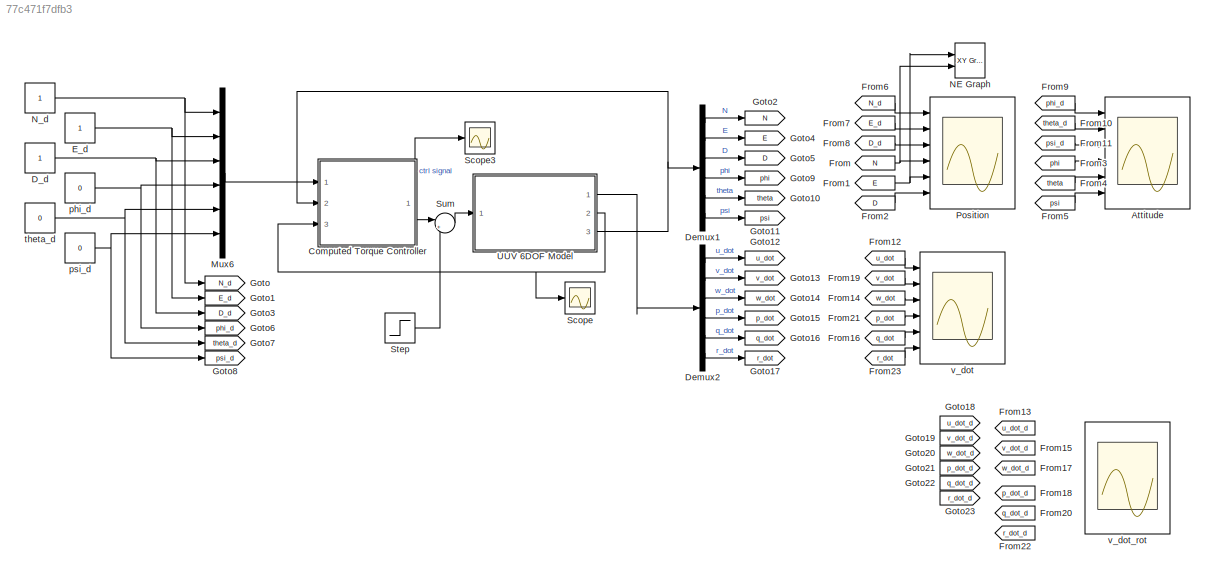
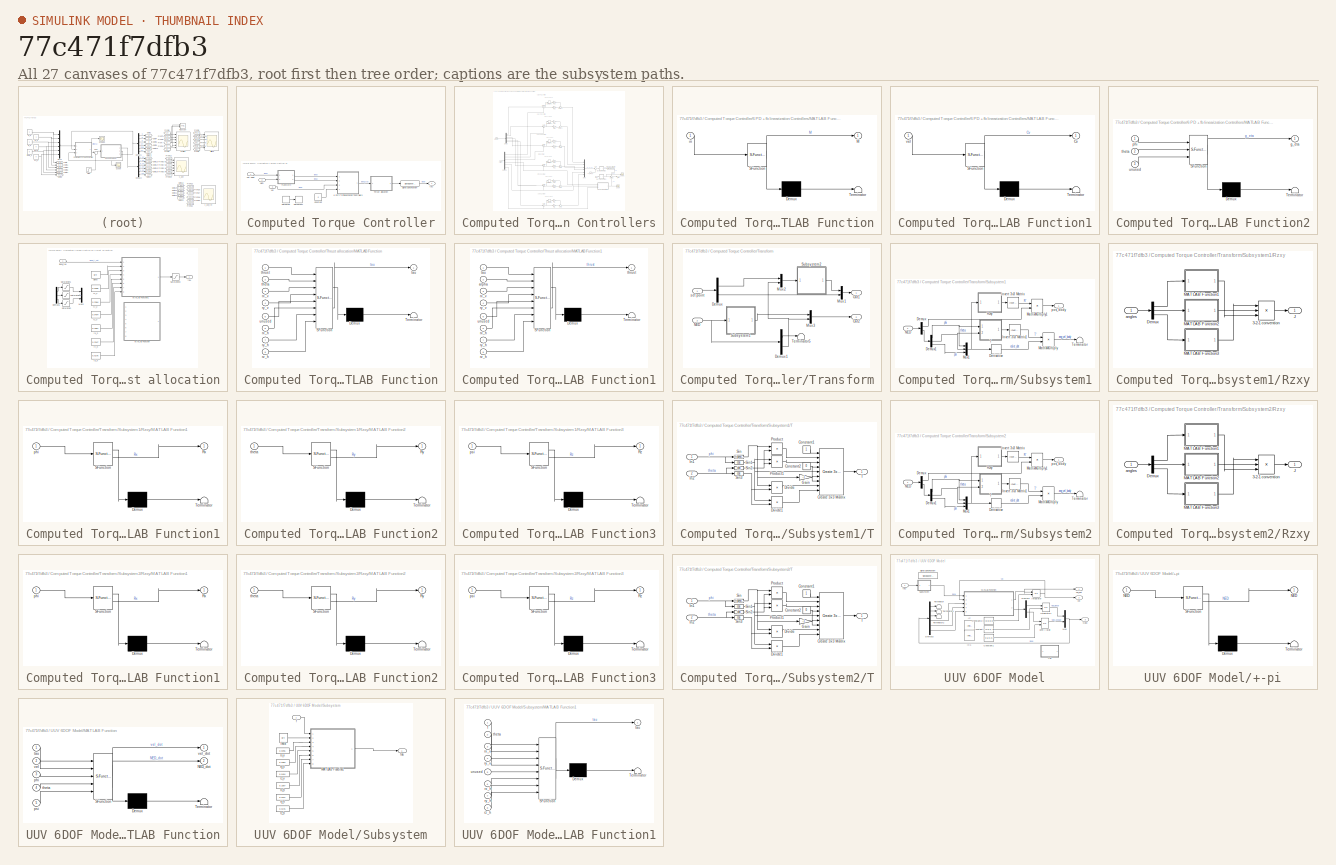
[diagram: thumbnail index - all 27 canvases of the model, root first then tree order]
MODEL slx_77c471f7dfb3
KIND model
CONFIG AbsTol = auto
CONFIG EnableMultiTasking = off
CONFIG FixedStep = auto
CONFIG MaxStep = auto
CONFIG MinStep = auto
CONFIG RelTol = 1e-3
CONFIG SampleTimeConstraint = Unconstrained
CONFIG Solver = VariableStepAuto
CONFIG SolverName = VariableStepAuto
CONFIG StartTime = 0.0
CONFIG StopTime = 50
WORKSPACE source: mxarray member
WORKSPACE kd = 0
WORKSPACE kp = 0
BLOCK [Scope] Attitude
  Floating = off
  NumInputPorts = 6
  Ports = [6]
  ScopeSpecificationString = Simulink.scopes.TimeScopeBlockCfg('CurrentConfiguration', extmgr.ConfigurationSet(extmgr.Configuration('Core','General UI',true),extmgr.Configuration('Core','Source UI',true),extmgr.Configuration('Sources','WiredSimulink',true,'DataLoggingVariableName','ScopeData1'),extmgr.Configuration('Visuals','Time Domain',true,'SerializedDisplays',{struct('MinYLimReal','-0.73517','MaxYLimReal','1.53989','YLab...<+1651ch>
BLOCK [SubSystem] Computed Torque Controller
  Ports = [3, 1]
  RequestExecContextInheritance = off
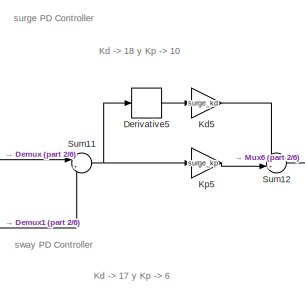
[diagram: Computed Torque Controller/6 PD + fb linearization Controllers - part 1/6, top center region]
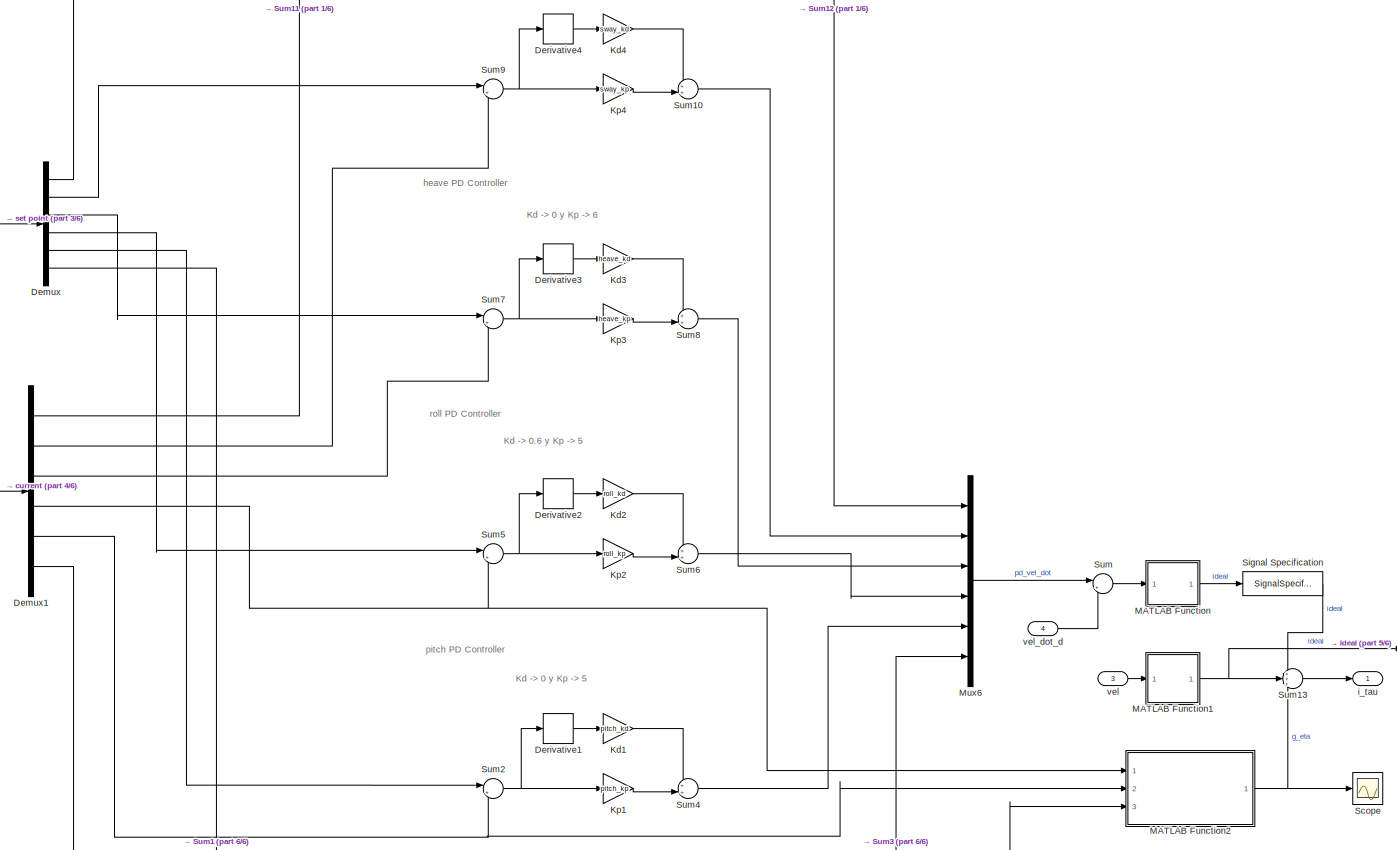
[diagram: Computed Torque Controller/6 PD + fb linearization Controllers - part 2/6, full width, middle band]
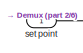
[diagram: Computed Torque Controller/6 PD + fb linearization Controllers - part 3/6, middle left region]
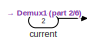
[diagram: Computed Torque Controller/6 PD + fb linearization Controllers - part 4/6, middle left region]
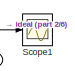
[diagram: Computed Torque Controller/6 PD + fb linearization Controllers - part 5/6, bottom right region]
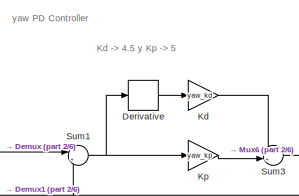
[diagram: Computed Torque Controller/6 PD + fb linearization Controllers - part 6/6, bottom center region]
BLOCK [SubSystem] Computed Torque Controller/6 PD + fb linearization Controllers
  Ports = [4, 1]
  RequestExecContextInheritance = off
BLOCK [Demux] Computed Torque Controller/6 PD + fb linearization Controllers/Demux
  Outputs = 6
  Ports = [1, 6]
BLOCK [Demux] Computed Torque Controller/6 PD + fb linearization Controllers/Demux1
  Outputs = 6
  Ports = [1, 6]
BLOCK [Derivative] Computed Torque Controller/6 PD + fb linearization Controllers/Derivative
BLOCK [Derivative] Computed Torque Controller/6 PD + fb linearization Controllers/Derivative1
BLOCK [Derivative] Computed Torque Controller/6 PD + fb linearization Controllers/Derivative2
BLOCK [Derivative] Computed Torque Controller/6 PD + fb linearization Controllers/Derivative3
BLOCK [Derivative] Computed Torque Controller/6 PD + fb linearization Controllers/Derivative4
BLOCK [Derivative] Computed Torque Controller/6 PD + fb linearization Controllers/Derivative5
BLOCK [Gain] Computed Torque Controller/6 PD + fb linearization Controllers/Kd
  Gain = yaw_kd
BLOCK [Gain] Computed Torque Controller/6 PD + fb linearization Controllers/Kd1
  Gain = pitch_kd
BLOCK [Gain] Computed Torque Controller/6 PD + fb linearization Controllers/Kd2
  Gain = roll_kd
BLOCK [Gain] Computed Torque Controller/6 PD + fb linearization Controllers/Kd3
  Gain = heave_kd
BLOCK [Gain] Computed Torque Controller/6 PD + fb linearization Controllers/Kd4
  Gain = sway_kd
BLOCK [Gain] Computed Torque Controller/6 PD + fb linearization Controllers/Kd5
  Gain = surge_kd
BLOCK [Gain] Computed Torque Controller/6 PD + fb linearization Controllers/Kp
  Gain = yaw_kp
BLOCK [Gain] Computed Torque Controller/6 PD + fb linearization Controllers/Kp1
  Gain = pitch_kp
BLOCK [Gain] Computed Torque Controller/6 PD + fb linearization Controllers/Kp2
  Gain = roll_kp
BLOCK [Gain] Computed Torque Controller/6 PD + fb linearization Controllers/Kp3
  Gain = heave_kp
BLOCK [Gain] Computed Torque Controller/6 PD + fb linearization Controllers/Kp4
  Gain = sway_kp
BLOCK [Gain] Computed Torque Controller/6 PD + fb linearization Controllers/Kp5
  Gain = surge_kp
BLOCK [SubSystem] Computed Torque Controller/6 PD + fb linearization Controllers/MATLAB Function
  ErrorFcn = Stateflow.Translate.translate
  PermitHierarchicalResolution = ExplicitOnly
  Ports = [1, 1]
  RequestExecContextInheritance = off
  SFBlockType = MATLAB Function
  TreatAsAtomicUnit = on
BLOCK [Demux] Computed Torque Controller/6 PD + fb linearization Controllers/MATLAB Function/ Demux 
  Outputs = 1
  Ports = [1, 1]
BLOCK [S-Function] Computed Torque Controller/6 PD + fb linearization Controllers/MATLAB Function/ SFunction 
  EnableBusSupport = on
  FunctionName = sf_sfun
  PortCounts = [1 2]
  Ports = [1, 2]
  SFcnIsStateOwnerBlock = off
  SFunctionDeploymentMode = off
  Tag = Stateflow S-Function 12
BLOCK [Terminator] Computed Torque Controller/6 PD + fb linearization Controllers/MATLAB Function/ Terminator 
BLOCK [Outport] Computed Torque Controller/6 PD + fb linearization Controllers/MATLAB Function/M
BLOCK [Inport] Computed Torque Controller/6 PD + fb linearization Controllers/MATLAB Function/in
BLOCK [SubSystem] Computed Torque Controller/6 PD + fb linearization Controllers/MATLAB Function1
  ErrorFcn = Stateflow.Translate.translate
  PermitHierarchicalResolution = ExplicitOnly
  Ports = [1, 1]
  RequestExecContextInheritance = off
  SFBlockType = MATLAB Function
  TreatAsAtomicUnit = on
BLOCK [Demux] Computed Torque Controller/6 PD + fb linearization Controllers/MATLAB Function1/ Demux 
  Outputs = 1
  Ports = [1, 1]
BLOCK [S-Function] Computed Torque Controller/6 PD + fb linearization Controllers/MATLAB Function1/ SFunction 
  EnableBusSupport = on
  FunctionName = sf_sfun
  PortCounts = [1 2]
  Ports = [1, 2]
  SFcnIsStateOwnerBlock = off
  SFunctionDeploymentMode = off
  Tag = Stateflow S-Function 13
BLOCK [Terminator] Computed Torque Controller/6 PD + fb linearization Controllers/MATLAB Function1/ Terminator 
BLOCK [Outport] Computed Torque Controller/6 PD + fb linearization Controllers/MATLAB Function1/Cv
BLOCK [Inport] Computed Torque Controller/6 PD + fb linearization Controllers/MATLAB Function1/vel
BLOCK [SubSystem] Computed Torque Controller/6 PD + fb linearization Controllers/MATLAB Function2
  ErrorFcn = Stateflow.Translate.translate
  PermitHierarchicalResolution = ExplicitOnly
  Ports = [3, 1]
  RequestExecContextInheritance = off
  SFBlockType = MATLAB Function
  TreatAsAtomicUnit = on
BLOCK [Demux] Computed Torque Controller/6 PD + fb linearization Controllers/MATLAB Function2/ Demux 
  Outputs = 1
  Ports = [1, 1]
BLOCK [S-Function] Computed Torque Controller/6 PD + fb linearization Controllers/MATLAB Function2/ SFunction 
  EnableBusSupport = on
  FunctionName = sf_sfun
  PortCounts = [3 2]
  Ports = [3, 2]
  SFcnIsStateOwnerBlock = off
  SFunctionDeploymentMode = off
  Tag = Stateflow S-Function 14
BLOCK [Terminator] Computed Torque Controller/6 PD + fb linearization Controllers/MATLAB Function2/ Terminator 
BLOCK [Outport] Computed Torque Controller/6 PD + fb linearization Controllers/MATLAB Function2/g_eta
BLOCK [Inport] Computed Torque Controller/6 PD + fb linearization Controllers/MATLAB Function2/phi
BLOCK [Inport] Computed Torque Controller/6 PD + fb linearization Controllers/MATLAB Function2/theta
  Port = 2
BLOCK [Inport] Computed Torque Controller/6 PD + fb linearization Controllers/MATLAB Function2/unused
  Port = 3
BLOCK [Mux] Computed Torque Controller/6 PD + fb linearization Controllers/Mux6
  DisplayOption = bar
  Inputs = 6
  Ports = [6, 1]
BLOCK [Scope] Computed Torque Controller/6 PD + fb linearization Controllers/Scope
  Floating = off
  NumInputPorts = 1
  Ports = [1]
  ScopeSpecificationString = Simulink.scopes.TimeScopeBlockCfg('CurrentConfiguration', extmgr.ConfigurationSet(extmgr.Configuration('Core','General UI',true),extmgr.Configuration('Core','Source UI',true),extmgr.Configuration('Sources','WiredSimulink',true,'DataLoggingVariableName','ScopeData1'),extmgr.Configuration('Visuals','Time Domain',true,'SerializedDisplays',{struct('MinYLimReal','-15.2885','MaxYLimReal','14.9488','YLab...<+1584ch>
BLOCK [Scope] Computed Torque Controller/6 PD + fb linearization Controllers/Scope1
  Floating = off
  NumInputPorts = 1
  Ports = [1]
  ScopeSpecificationString = Simulink.scopes.TimeScopeBlockCfg('CurrentConfiguration', extmgr.ConfigurationSet(extmgr.Configuration('Core','General UI',true),extmgr.Configuration('Core','Source UI',true),extmgr.Configuration('Sources','WiredSimulink',true,'DataLoggingVariableName','ScopeData2'),extmgr.Configuration('Visuals','Time Domain',true,'SerializedDisplays',{struct('MinYLimReal','-10.96797','MaxYLimReal','13.62388','YL...<+1422ch>
BLOCK [SignalSpecification] Computed Torque Controller/6 PD + fb linearization Controllers/Signal Specification
  Dimensions = 6
  VarSizeSig = No
BLOCK [Sum] Computed Torque Controller/6 PD + fb linearization Controllers/Sum
  Inputs = |++
  Ports = [2, 1]
BLOCK [Sum] Computed Torque Controller/6 PD + fb linearization Controllers/Sum1
  Inputs = |+-
  Ports = [2, 1]
BLOCK [Sum] Computed Torque Controller/6 PD + fb linearization Controllers/Sum10
  Inputs = ++|
  Ports = [2, 1]
BLOCK [Sum] Computed Torque Controller/6 PD + fb linearization Controllers/Sum11
  Inputs = |+-
  Ports = [2, 1]
BLOCK [Sum] Computed Torque Controller/6 PD + fb linearization Controllers/Sum12
  Inputs = ++|
  Ports = [2, 1]
BLOCK [Sum] Computed Torque Controller/6 PD + fb linearization Controllers/Sum13
  Inputs = +++
  Ports = [3, 1]
BLOCK [Sum] Computed Torque Controller/6 PD + fb linearization Controllers/Sum2
  Inputs = |+-
  Ports = [2, 1]
BLOCK [Sum] Computed Torque Controller/6 PD + fb linearization Controllers/Sum3
  Inputs = ++|
  Ports = [2, 1]
BLOCK [Sum] Computed Torque Controller/6 PD + fb linearization Controllers/Sum4
  Inputs = ++|
  Ports = [2, 1]
BLOCK [Sum] Computed Torque Controller/6 PD + fb linearization Controllers/Sum5
  Inputs = |+-
  Ports = [2, 1]
BLOCK [Sum] Computed Torque Controller/6 PD + fb linearization Controllers/Sum6
  Inputs = ++|
  Ports = [2, 1]
BLOCK [Sum] Computed Torque Controller/6 PD + fb linearization Controllers/Sum7
  Inputs = |+-
  Ports = [2, 1]
BLOCK [Sum] Computed Torque Controller/6 PD + fb linearization Controllers/Sum8
  Inputs = ++|
  Ports = [2, 1]
BLOCK [Sum] Computed Torque Controller/6 PD + fb linearization Controllers/Sum9
  Inputs = |+-
  Ports = [2, 1]
BLOCK [Inport] Computed Torque Controller/6 PD + fb linearization Controllers/current
  Port = 2
BLOCK [Outport] Computed Torque Controller/6 PD + fb linearization Controllers/i_tau
BLOCK [Inport] Computed Torque Controller/6 PD + fb linearization Controllers/set point
BLOCK [Inport] Computed Torque Controller/6 PD + fb linearization Controllers/vel
  Port = 3
BLOCK [Inport] Computed Torque Controller/6 PD + fb linearization Controllers/vel_dot_d
  Port = 4
BLOCK [Constant] Computed Torque Controller/Constant
  Value = 0
BLOCK [Derivative] Computed Torque Controller/Derivative
  Commented = on
BLOCK [Derivative] Computed Torque Controller/Derivative1
  Commented = on
BLOCK [Inport] Computed Torque Controller/NED
  Port = 2
BLOCK [SignalSpecification] Computed Torque Controller/Signal Specification
  Dimensions = 6
  VarSizeSig = No
BLOCK [SubSystem] Computed Torque Controller/Thrust allocation
  Ports = [1, 1]
  RequestExecContextInheritance = off
BLOCK [Demux] Computed Torque Controller/Thrust allocation/Demux6
  Commented = on
  Outputs = 3
  Ports = [1, 3]
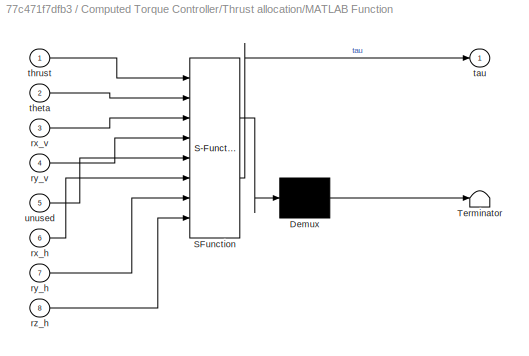
BLOCK [SubSystem] Computed Torque Controller/Thrust allocation/MATLAB Function
  Commented = on
  ErrorFcn = Stateflow.Translate.translate
  PermitHierarchicalResolution = ExplicitOnly
  Ports = [8, 1]
  RequestExecContextInheritance = off
  SFBlockType = MATLAB Function
  TreatAsAtomicUnit = on
BLOCK [Demux] Computed Torque Controller/Thrust allocation/MATLAB Function/ Demux 
  Outputs = 1
  Ports = [1, 1]
BLOCK [S-Function] Computed Torque Controller/Thrust allocation/MATLAB Function/ SFunction 
  EnableBusSupport = on
  FunctionName = sf_sfun
  PortCounts = [8 2]
  Ports = [8, 2]
  SFcnIsStateOwnerBlock = off
  SFunctionDeploymentMode = off
  Tag = Stateflow S-Function 3
BLOCK [Terminator] Computed Torque Controller/Thrust allocation/MATLAB Function/ Terminator 
BLOCK [Inport] Computed Torque Controller/Thrust allocation/MATLAB Function/rx_h
  Port = 6
BLOCK [Inport] Computed Torque Controller/Thrust allocation/MATLAB Function/rx_v
  Port = 3
BLOCK [Inport] Computed Torque Controller/Thrust allocation/MATLAB Function/ry_h
  Port = 7
BLOCK [Inport] Computed Torque Controller/Thrust allocation/MATLAB Function/ry_v
  Port = 4
BLOCK [Inport] Computed Torque Controller/Thrust allocation/MATLAB Function/rz_h
  Port = 8
BLOCK [Outport] Computed Torque Controller/Thrust allocation/MATLAB Function/tau
BLOCK [Inport] Computed Torque Controller/Thrust allocation/MATLAB Function/theta
  Port = 2
BLOCK [Inport] Computed Torque Controller/Thrust allocation/MATLAB Function/thrust
BLOCK [Inport] Computed Torque Controller/Thrust allocation/MATLAB Function/unused
  Port = 5
BLOCK [SubSystem] Computed Torque Controller/Thrust allocation/MATLAB Function1
  ErrorFcn = Stateflow.Translate.translate
  PermitHierarchicalResolution = ExplicitOnly
  Ports = [8, 1]
  RequestExecContextInheritance = off
  SFBlockType = MATLAB Function
  TreatAsAtomicUnit = on
BLOCK [Demux] Computed Torque Controller/Thrust allocation/MATLAB Function1/ Demux 
  Outputs = 1
  Ports = [1, 1]
BLOCK [S-Function] Computed Torque Controller/Thrust allocation/MATLAB Function1/ SFunction 
  EnableBusSupport = on
  FunctionName = sf_sfun
  PortCounts = [8 2]
  Ports = [8, 2]
  SFcnIsStateOwnerBlock = off
  SFunctionDeploymentMode = off
  Tag = Stateflow S-Function 11
BLOCK [Terminator] Computed Torque Controller/Thrust allocation/MATLAB Function1/ Terminator 
BLOCK [Inport] Computed Torque Controller/Thrust allocation/MATLAB Function1/alpha
  Port = 2
BLOCK [Inport] Computed Torque Controller/Thrust allocation/MATLAB Function1/rx_h
  Port = 6
BLOCK [Inport] Computed Torque Controller/Thrust allocation/MATLAB Function1/rx_v
  Port = 3
BLOCK [Inport] Computed Torque Controller/Thrust allocation/MATLAB Function1/ry_h
  Port = 7
BLOCK [Inport] Computed Torque Controller/Thrust allocation/MATLAB Function1/ry_v
  Port = 4
BLOCK [Inport] Computed Torque Controller/Thrust allocation/MATLAB Function1/rz_h
  Port = 8
BLOCK [Inport] Computed Torque Controller/Thrust allocation/MATLAB Function1/tau
BLOCK [Outport] Computed Torque Controller/Thrust allocation/MATLAB Function1/thrust
BLOCK [Inport] Computed Torque Controller/Thrust allocation/MATLAB Function1/unused
  Port = 5
BLOCK [Mux] Computed Torque Controller/Thrust allocation/Mux2
  Commented = on
  DisplayOption = bar
  Inputs = 3
  Ports = [3, 1]
BLOCK [Saturate] Computed Torque Controller/Thrust allocation/Saturation
  Commented = on
  LowerLimit = -70
  UpperLimit = 70
BLOCK [Saturate] Computed Torque Controller/Thrust allocation/Saturation1
  Commented = on
  LowerLimit = -100
  UpperLimit = 100
BLOCK [Saturate] Computed Torque Controller/Thrust allocation/Saturation2
  Commented = on
  LowerLimit = -100
  UpperLimit = 100
BLOCK [Saturate] Computed Torque Controller/Thrust allocation/Saturation3
  LowerLimit = -35
  UpperLimit = 35
BLOCK [Constant] Computed Torque Controller/Thrust allocation/alpha
  Value = pi/4
BLOCK [Inport] Computed Torque Controller/Thrust allocation/ideal_tau
BLOCK [Constant] Computed Torque Controller/Thrust allocation/rx_h
  Value = 0.1867
BLOCK [Constant] Computed Torque Controller/Thrust allocation/rx_v
  Value = 0.0395
BLOCK [Constant] Computed Torque Controller/Thrust allocation/ry_h
  Value = 0.2347
BLOCK [Constant] Computed Torque Controller/Thrust allocation/ry_v
  Value = 0.2384
BLOCK [Constant] Computed Torque Controller/Thrust allocation/rz_h
  Value = 0.0175
BLOCK [Constant] Computed Torque Controller/Thrust allocation/rz_v
  Value = 0.0404
BLOCK [Outport] Computed Torque Controller/Thrust allocation/tau
BLOCK [SubSystem] Computed Torque Controller/Transform
  Ports = [2, 2]
  RequestExecContextInheritance = off
BLOCK [Demux] Computed Torque Controller/Transform/Demux
  Outputs = 2
  Ports = [1, 2]
BLOCK [Demux] Computed Torque Controller/Transform/Demux1
  Outputs = 2
  Ports = [1, 2]
BLOCK [Mux] Computed Torque Controller/Transform/Mux1
  DisplayOption = bar
  Inputs = 2
  Ports = [2, 1]
BLOCK [Mux] Computed Torque Controller/Transform/Mux2
  DisplayOption = bar
  Inputs = 2
  Ports = [2, 1]
BLOCK [Mux] Computed Torque Controller/Transform/Mux3
  DisplayOption = bar
  Inputs = 2
  Ports = [2, 1]
BLOCK [Inport] Computed Torque Controller/Transform/NED
  Port = 2
BLOCK [Outport] Computed Torque Controller/Transform/Out1
BLOCK [Outport] Computed Torque Controller/Transform/Out2
  Port = 2
BLOCK [SubSystem] Computed Torque Controller/Transform/Subsystem1
  Ports = [1, 1]
  RequestExecContextInheritance = off
BLOCK [Demux] Computed Torque Controller/Transform/Subsystem1/Demux
  Outputs = 2
  Ports = [1, 2]
BLOCK [Demux] Computed Torque Controller/Transform/Subsystem1/Demux1
  Outputs = 3
  Ports = [1, 3]
BLOCK [Derivative] Computed Torque Controller/Transform/Subsystem1/Derivative
  Commented = on
BLOCK [Reference] Computed Torque Controller/Transform/Subsystem1/Invert 3x3 Matrix  REF=aerolibutil/Invert 
3x3 Matrix
  Ports = [1, 1]
  SourceBlock = aerolibutil/Invert \n3x3 Matrix
  SourceProductBaseCode = AE
  SourceType = Invert 3x3 Matrix
BLOCK [Reference] Computed Torque Controller/Transform/Subsystem1/Invert 3x3 Matrix1  REF=aerolibutil/Invert 
3x3 Matrix
  Commented = on
  Ports = [1, 1]
  SourceBlock = aerolibutil/Invert \n3x3 Matrix
  SourceProductBaseCode = AE
  SourceType = Invert 3x3 Matrix
BLOCK [Product] Computed Torque Controller/Transform/Subsystem1/MatrixMultiply
  Commented = on
  Multiplication = Matrix(*)
  Ports = [2, 1]
BLOCK [Product] Computed Torque Controller/Transform/Subsystem1/MatrixMultiply1
  Multiplication = Matrix(*)
  Ports = [2, 1]
BLOCK [Mux] Computed Torque Controller/Transform/Subsystem1/Mux1
  DisplayOption = bar
  Inputs = 3
  Ports = [3, 1]
BLOCK [Inport] Computed Torque Controller/Transform/Subsystem1/NED
BLOCK [SubSystem] Computed Torque Controller/Transform/Subsystem1/Rzxy
  Ports = [1, 1]
  RequestExecContextInheritance = off
BLOCK [Product] Computed Torque Controller/Transform/Subsystem1/Rzxy/3-2-1 convention
  Inputs = 3
  Multiplication = Matrix(*)
  Ports = [3, 1]
BLOCK [Demux] Computed Torque Controller/Transform/Subsystem1/Rzxy/Demux
  Outputs = 3
  Ports = [1, 3]
BLOCK [Outport] Computed Torque Controller/Transform/Subsystem1/Rzxy/J
BLOCK [SubSystem] Computed Torque Controller/Transform/Subsystem1/Rzxy/MATLAB Function1
  ErrorFcn = Stateflow.Translate.translate
  PermitHierarchicalResolution = ExplicitOnly
  Ports = [1, 1]
  RequestExecContextInheritance = off
  SFBlockType = MATLAB Function
  TreatAsAtomicUnit = on
BLOCK [Demux] Computed Torque Controller/Transform/Subsystem1/Rzxy/MATLAB Function1/ Demux 
  Outputs = 1
  Ports = [1, 1]
BLOCK [S-Function] Computed Torque Controller/Transform/Subsystem1/Rzxy/MATLAB Function1/ SFunction 
  EnableBusSupport = on
  FunctionName = sf_sfun
  PortCounts = [1 2]
  Ports = [1, 2]
  SFcnIsStateOwnerBlock = off
  SFunctionDeploymentMode = off
  Tag = Stateflow S-Function 8
BLOCK [Terminator] Computed Torque Controller/Transform/Subsystem1/Rzxy/MATLAB Function1/ Terminator 
BLOCK [Outport] Computed Torque Controller/Transform/Subsystem1/Rzxy/MATLAB Function1/Rx
BLOCK [Inport] Computed Torque Controller/Transform/Subsystem1/Rzxy/MATLAB Function1/phi
BLOCK [SubSystem] Computed Torque Controller/Transform/Subsystem1/Rzxy/MATLAB Function2
  ErrorFcn = Stateflow.Translate.translate
  PermitHierarchicalResolution = ExplicitOnly
  Ports = [1, 1]
  RequestExecContextInheritance = off
  SFBlockType = MATLAB Function
  TreatAsAtomicUnit = on
BLOCK [Demux] Computed Torque Controller/Transform/Subsystem1/Rzxy/MATLAB Function2/ Demux 
  Outputs = 1
  Ports = [1, 1]
BLOCK [S-Function] Computed Torque Controller/Transform/Subsystem1/Rzxy/MATLAB Function2/ SFunction 
  EnableBusSupport = on
  FunctionName = sf_sfun
  PortCounts = [1 2]
  Ports = [1, 2]
  SFcnIsStateOwnerBlock = off
  SFunctionDeploymentMode = off
  Tag = Stateflow S-Function 9
BLOCK [Terminator] Computed Torque Controller/Transform/Subsystem1/Rzxy/MATLAB Function2/ Terminator 
BLOCK [Outport] Computed Torque Controller/Transform/Subsystem1/Rzxy/MATLAB Function2/Ry
BLOCK [Inport] Computed Torque Controller/Transform/Subsystem1/Rzxy/MATLAB Function2/theta
BLOCK [SubSystem] Computed Torque Controller/Transform/Subsystem1/Rzxy/MATLAB Function3
  ErrorFcn = Stateflow.Translate.translate
  PermitHierarchicalResolution = ExplicitOnly
  Ports = [1, 1]
  RequestExecContextInheritance = off
  SFBlockType = MATLAB Function
  TreatAsAtomicUnit = on
BLOCK [Demux] Computed Torque Controller/Transform/Subsystem1/Rzxy/MATLAB Function3/ Demux 
  Outputs = 1
  Ports = [1, 1]
BLOCK [S-Function] Computed Torque Controller/Transform/Subsystem1/Rzxy/MATLAB Function3/ SFunction 
  EnableBusSupport = on
  FunctionName = sf_sfun
  PortCounts = [1 2]
  Ports = [1, 2]
  SFcnIsStateOwnerBlock = off
  SFunctionDeploymentMode = off
  Tag = Stateflow S-Function 10
BLOCK [Terminator] Computed Torque Controller/Transform/Subsystem1/Rzxy/MATLAB Function3/ Terminator 
BLOCK [Outport] Computed Torque Controller/Transform/Subsystem1/Rzxy/MATLAB Function3/Rz
BLOCK [Inport] Computed Torque Controller/Transform/Subsystem1/Rzxy/MATLAB Function3/psi
BLOCK [Inport] Computed Torque Controller/Transform/Subsystem1/Rzxy/angles
BLOCK [SubSystem] Computed Torque Controller/Transform/Subsystem1/T
  Commented = on
  Ports = [2, 1]
  RequestExecContextInheritance = off
BLOCK [Constant] Computed Torque Controller/Transform/Subsystem1/T/Constant1
BLOCK [Constant] Computed Torque Controller/Transform/Subsystem1/T/Constant2
  Value = 0
BLOCK [Reference] Computed Torque Controller/Transform/Subsystem1/T/Create 3x3 Matrix  REF=sharedutil/Create 3x3 Matrix
  Ports = [9, 1]
  SourceBlock = sharedutil/Create 3x3 Matrix
  SourceProductBaseCode = AE,PW,MT,VE,VP
  SourceType = Create 3x3 Matrix
BLOCK [Product] Computed Torque Controller/Transform/Subsystem1/T/Divide
  Inputs = */
  Ports = [2, 1]
BLOCK [Product] Computed Torque Controller/Transform/Subsystem1/T/Divide1
  Inputs = */
  Ports = [2, 1]
BLOCK [Gain] Computed Torque Controller/Transform/Subsystem1/T/Gain
  Gain = -1
BLOCK [Inport] Computed Torque Controller/Transform/Subsystem1/T/In1
BLOCK [Inport] Computed Torque Controller/Transform/Subsystem1/T/In2
  Port = 2
BLOCK [Product] Computed Torque Controller/Transform/Subsystem1/T/Product
  Ports = [2, 1]
BLOCK [Product] Computed Torque Controller/Transform/Subsystem1/T/Product1
  Ports = [2, 1]
BLOCK [Trigonometry] Computed Torque Controller/Transform/Subsystem1/T/Sin
  Ports = [1, 1]
BLOCK [Trigonometry] Computed Torque Controller/Transform/Subsystem1/T/Sin1
  Operator = cos
  Ports = [1, 1]
BLOCK [Trigonometry] Computed Torque Controller/Transform/Subsystem1/T/Sin2
  Operator = tan
  Ports = [1, 1]
BLOCK [Trigonometry] Computed Torque Controller/Transform/Subsystem1/T/Sin3
  Operator = cos
  Ports = [1, 1]
BLOCK [Outport] Computed Torque Controller/Transform/Subsystem1/T/T
BLOCK [Terminator] Computed Torque Controller/Transform/Subsystem1/Terminator
  Commented = on
BLOCK [Outport] Computed Torque Controller/Transform/Subsystem1/pos_body
BLOCK [SubSystem] Computed Torque Controller/Transform/Subsystem2
  Ports = [1, 1]
  RequestExecContextInheritance = off
BLOCK [Demux] Computed Torque Controller/Transform/Subsystem2/Demux
  Outputs = 2
  Ports = [1, 2]
BLOCK [Demux] Computed Torque Controller/Transform/Subsystem2/Demux1
  Outputs = 3
  Ports = [1, 3]
BLOCK [Derivative] Computed Torque Controller/Transform/Subsystem2/Derivative
  Commented = on
BLOCK [Reference] Computed Torque Controller/Transform/Subsystem2/Invert 3x3 Matrix  REF=aerolibutil/Invert 
3x3 Matrix
  Ports = [1, 1]
  SourceBlock = aerolibutil/Invert \n3x3 Matrix
  SourceProductBaseCode = AE
  SourceType = Invert 3x3 Matrix
BLOCK [Reference] Computed Torque Controller/Transform/Subsystem2/Invert 3x3 Matrix1  REF=aerolibutil/Invert 
3x3 Matrix
  Commented = on
  Ports = [1, 1]
  SourceBlock = aerolibutil/Invert \n3x3 Matrix
  SourceProductBaseCode = AE
  SourceType = Invert 3x3 Matrix
BLOCK [Product] Computed Torque Controller/Transform/Subsystem2/MatrixMultiply
  Commented = on
  Multiplication = Matrix(*)
  Ports = [2, 1]
BLOCK [Product] Computed Torque Controller/Transform/Subsystem2/MatrixMultiply1
  Multiplication = Matrix(*)
  Ports = [2, 1]
BLOCK [Mux] Computed Torque Controller/Transform/Subsystem2/Mux1
  DisplayOption = bar
  Inputs = 3
  Ports = [3, 1]
BLOCK [Inport] Computed Torque Controller/Transform/Subsystem2/NED
BLOCK [SubSystem] Computed Torque Controller/Transform/Subsystem2/Rzxy
  Ports = [1, 1]
  RequestExecContextInheritance = off
BLOCK [Product] Computed Torque Controller/Transform/Subsystem2/Rzxy/3-2-1 convention
  Inputs = 3
  Multiplication = Matrix(*)
  Ports = [3, 1]
BLOCK [Demux] Computed Torque Controller/Transform/Subsystem2/Rzxy/Demux
  Outputs = 3
  Ports = [1, 3]
BLOCK [Outport] Computed Torque Controller/Transform/Subsystem2/Rzxy/J
BLOCK [SubSystem] Computed Torque Controller/Transform/Subsystem2/Rzxy/MATLAB Function1
  ErrorFcn = Stateflow.Translate.translate
  PermitHierarchicalResolution = ExplicitOnly
  Ports = [1, 1]
  RequestExecContextInheritance = off
  SFBlockType = MATLAB Function
  TreatAsAtomicUnit = on
BLOCK [Demux] Computed Torque Controller/Transform/Subsystem2/Rzxy/MATLAB Function1/ Demux 
  Outputs = 1
  Ports = [1, 1]
BLOCK [S-Function] Computed Torque Controller/Transform/Subsystem2/Rzxy/MATLAB Function1/ SFunction 
  EnableBusSupport = on
  FunctionName = sf_sfun
  PortCounts = [1 2]
  Ports = [1, 2]
  SFcnIsStateOwnerBlock = off
  SFunctionDeploymentMode = off
  Tag = Stateflow S-Function 1
BLOCK [Terminator] Computed Torque Controller/Transform/Subsystem2/Rzxy/MATLAB Function1/ Terminator 
BLOCK [Outport] Computed Torque Controller/Transform/Subsystem2/Rzxy/MATLAB Function1/Rx
BLOCK [Inport] Computed Torque Controller/Transform/Subsystem2/Rzxy/MATLAB Function1/phi
BLOCK [SubSystem] Computed Torque Controller/Transform/Subsystem2/Rzxy/MATLAB Function2
  ErrorFcn = Stateflow.Translate.translate
  PermitHierarchicalResolution = ExplicitOnly
  Ports = [1, 1]
  RequestExecContextInheritance = off
  SFBlockType = MATLAB Function
  TreatAsAtomicUnit = on
BLOCK [Demux] Computed Torque Controller/Transform/Subsystem2/Rzxy/MATLAB Function2/ Demux 
  Outputs = 1
  Ports = [1, 1]
BLOCK [S-Function] Computed Torque Controller/Transform/Subsystem2/Rzxy/MATLAB Function2/ SFunction 
  EnableBusSupport = on
  FunctionName = sf_sfun
  PortCounts = [1 2]
  Ports = [1, 2]
  SFcnIsStateOwnerBlock = off
  SFunctionDeploymentMode = off
  Tag = Stateflow S-Function 6
BLOCK [Terminator] Computed Torque Controller/Transform/Subsystem2/Rzxy/MATLAB Function2/ Terminator 
BLOCK [Outport] Computed Torque Controller/Transform/Subsystem2/Rzxy/MATLAB Function2/Ry
BLOCK [Inport] Computed Torque Controller/Transform/Subsystem2/Rzxy/MATLAB Function2/theta
BLOCK [SubSystem] Computed Torque Controller/Transform/Subsystem2/Rzxy/MATLAB Function3
  ErrorFcn = Stateflow.Translate.translate
  PermitHierarchicalResolution = ExplicitOnly
  Ports = [1, 1]
  RequestExecContextInheritance = off
  SFBlockType = MATLAB Function
  TreatAsAtomicUnit = on
BLOCK [Demux] Computed Torque Controller/Transform/Subsystem2/Rzxy/MATLAB Function3/ Demux 
  Outputs = 1
  Ports = [1, 1]
BLOCK [S-Function] Computed Torque Controller/Transform/Subsystem2/Rzxy/MATLAB Function3/ SFunction 
  EnableBusSupport = on
  FunctionName = sf_sfun
  PortCounts = [1 2]
  Ports = [1, 2]
  SFcnIsStateOwnerBlock = off
  SFunctionDeploymentMode = off
  Tag = Stateflow S-Function 7
BLOCK [Terminator] Computed Torque Controller/Transform/Subsystem2/Rzxy/MATLAB Function3/ Terminator 
BLOCK [Outport] Computed Torque Controller/Transform/Subsystem2/Rzxy/MATLAB Function3/Rz
BLOCK [Inport] Computed Torque Controller/Transform/Subsystem2/Rzxy/MATLAB Function3/psi
BLOCK [Inport] Computed Torque Controller/Transform/Subsystem2/Rzxy/angles
BLOCK [SubSystem] Computed Torque Controller/Transform/Subsystem2/T
  Commented = on
  Ports = [2, 1]
  RequestExecContextInheritance = off
BLOCK [Constant] Computed Torque Controller/Transform/Subsystem2/T/Constant1
BLOCK [Constant] Computed Torque Controller/Transform/Subsystem2/T/Constant2
  Value = 0
BLOCK [Reference] Computed Torque Controller/Transform/Subsystem2/T/Create 3x3 Matrix  REF=sharedutil/Create 3x3 Matrix
  Ports = [9, 1]
  SourceBlock = sharedutil/Create 3x3 Matrix
  SourceProductBaseCode = AE,PW,MT,VE,VP
  SourceType = Create 3x3 Matrix
BLOCK [Product] Computed Torque Controller/Transform/Subsystem2/T/Divide
  Inputs = */
  Ports = [2, 1]
BLOCK [Product] Computed Torque Controller/Transform/Subsystem2/T/Divide1
  Inputs = */
  Ports = [2, 1]
BLOCK [Gain] Computed Torque Controller/Transform/Subsystem2/T/Gain
  Gain = -1
BLOCK [Inport] Computed Torque Controller/Transform/Subsystem2/T/In1
BLOCK [Inport] Computed Torque Controller/Transform/Subsystem2/T/In2
  Port = 2
BLOCK [Product] Computed Torque Controller/Transform/Subsystem2/T/Product
  Ports = [2, 1]
BLOCK [Product] Computed Torque Controller/Transform/Subsystem2/T/Product1
  Ports = [2, 1]
BLOCK [Trigonometry] Computed Torque Controller/Transform/Subsystem2/T/Sin
  Ports = [1, 1]
BLOCK [Trigonometry] Computed Torque Controller/Transform/Subsystem2/T/Sin1
  Operator = cos
  Ports = [1, 1]
BLOCK [Trigonometry] Computed Torque Controller/Transform/Subsystem2/T/Sin2
  Operator = tan
  Ports = [1, 1]
BLOCK [Trigonometry] Computed Torque Controller/Transform/Subsystem2/T/Sin3
  Operator = cos
  Ports = [1, 1]
BLOCK [Outport] Computed Torque Controller/Transform/Subsystem2/T/T
BLOCK [Terminator] Computed Torque Controller/Transform/Subsystem2/Terminator
  Commented = on
BLOCK [Outport] Computed Torque Controller/Transform/Subsystem2/pos_body
BLOCK [Terminator] Computed Torque Controller/Transform/Terminator5
BLOCK [Inport] Computed Torque Controller/Transform/set point
BLOCK [Inport] Computed Torque Controller/set point
BLOCK [Outport] Computed Torque Controller/tau
BLOCK [Inport] Computed Torque Controller/vel
  Port = 3
BLOCK [Constant] D_d
BLOCK [Demux] Demux1
  Outputs = 6
  Ports = [1, 6]
BLOCK [Demux] Demux2
  Outputs = 6
  Ports = [1, 6]
BLOCK [Constant] E_d
BLOCK [From] From
  GotoTag = N
BLOCK [From] From1
  GotoTag = E
BLOCK [From] From10
  GotoTag = theta_d
BLOCK [From] From11
  GotoTag = psi_d
BLOCK [From] From12
  GotoTag = u_dot
BLOCK [From] From13
  Commented = on
  GotoTag = u_dot_d
BLOCK [From] From14
  GotoTag = w_dot
BLOCK [From] From15
  Commented = on
  GotoTag = v_dot_d
BLOCK [From] From16
  GotoTag = q_dot
BLOCK [From] From17
  Commented = on
  GotoTag = w_dot_d
BLOCK [From] From18
  Commented = on
  GotoTag = p_dot_d
BLOCK [From] From19
  GotoTag = v_dot
BLOCK [From] From2
  GotoTag = D
BLOCK [From] From20
  Commented = on
  GotoTag = q_dot_d
BLOCK [From] From21
  GotoTag = p_dot
BLOCK [From] From22
  Commented = on
  GotoTag = r_dot_d
BLOCK [From] From23
  GotoTag = r_dot
BLOCK [From] From3
  GotoTag = phi
BLOCK [From] From4
  GotoTag = theta
BLOCK [From] From5
  GotoTag = psi
BLOCK [From] From6
  GotoTag = N_d
BLOCK [From] From7
  GotoTag = E_d
BLOCK [From] From8
  GotoTag = D_d
BLOCK [From] From9
  GotoTag = phi_d
BLOCK [Goto] Goto
  GotoTag = N_d
BLOCK [Goto] Goto1
  GotoTag = E_d
BLOCK [Goto] Goto10
  GotoTag = theta
BLOCK [Goto] Goto11
  GotoTag = psi
BLOCK [Goto] Goto12
  GotoTag = u_dot
BLOCK [Goto] Goto13
  GotoTag = v_dot
BLOCK [Goto] Goto14
  GotoTag = w_dot
BLOCK [Goto] Goto15
  GotoTag = p_dot
BLOCK [Goto] Goto16
  GotoTag = q_dot
BLOCK [Goto] Goto17
  GotoTag = r_dot
BLOCK [Goto] Goto18
  Commented = on
  GotoTag = u_dot_d
BLOCK [Goto] Goto19
  Commented = on
  GotoTag = v_dot_d
BLOCK [Goto] Goto2
  GotoTag = N
BLOCK [Goto] Goto20
  Commented = on
  GotoTag = w_dot_d
BLOCK [Goto] Goto21
  Commented = on
  GotoTag = p_dot_d
BLOCK [Goto] Goto22
  Commented = on
  GotoTag = q_dot_d
BLOCK [Goto] Goto23
  Commented = on
  GotoTag = r_dot_d
BLOCK [Goto] Goto3
  GotoTag = D_d
BLOCK [Goto] Goto4
  GotoTag = E
BLOCK [Goto] Goto5
  GotoTag = D
BLOCK [Goto] Goto6
  GotoTag = phi_d
BLOCK [Goto] Goto7
  GotoTag = theta_d
BLOCK [Goto] Goto8
  GotoTag = psi_d
BLOCK [Goto] Goto9
  GotoTag = phi
BLOCK [Mux] Mux6
  DisplayOption = bar
  Inputs = 6
  Ports = [6, 1]
BLOCK [Reference] NE Graph  REF=simulink/Sinks/XY Graph
  Ports = [2]
  SourceBlock = simulink/Sinks/XY Graph
  SourceProductBaseCode = SL
  SourceType = XY scope.
BLOCK [Constant] N_d
BLOCK [Scope] Position
  Floating = off
  NumInputPorts = 6
  Ports = [6]
  ScopeSpecificationString = Simulink.scopes.TimeScopeBlockCfg('CurrentConfiguration', extmgr.ConfigurationSet(extmgr.Configuration('Core','General UI',true),extmgr.Configuration('Core','Source UI',true),extmgr.Configuration('Sources','WiredSimulink',true),extmgr.Configuration('Visuals','Time Domain',true,'SerializedDisplays',{struct('MinYLimReal','-3.875','MaxYLimReal','4.875','YLabelReal','','MinYLimMag','0.00000','MaxYLimM...<+1557ch>
BLOCK [Scope] Scope
  Floating = off
  NumInputPorts = 1
  Ports = [1]
  ScopeSpecificationString = Simulink.scopes.TimeScopeBlockCfg('CurrentConfiguration', extmgr.ConfigurationSet(extmgr.Configuration('Core','General UI',true),extmgr.Configuration('Core','Source UI',true),extmgr.Configuration('Sources','WiredSimulink',true,'DataLoggingVariableName','ScopeData1'),extmgr.Configuration('Visuals','Time Domain',true,'SerializedDisplays',{struct('MinYLimReal','-2.45522','MaxYLimReal','1.50512','YLab...<+1780ch>
BLOCK [Scope] Scope3
  Floating = off
  NumInputPorts = 1
  Ports = [1]
  ScopeSpecificationString = Simulink.scopes.TimeScopeBlockCfg('CurrentConfiguration', extmgr.ConfigurationSet(extmgr.Configuration('Core','General UI',true),extmgr.Configuration('Core','Source UI',true),extmgr.Configuration('Sources','WiredSimulink',true,'DataLoggingVariableName','ScopeData1'),extmgr.Configuration('Visuals','Time Domain',true,'SerializedDisplays',{struct('MinYLimReal','-43.75','MaxYLimReal','43.75','YLabelRe...<+1626ch>
BLOCK [Step] Step
  After = [30;30;30;5;5;5]
  Commented = on
  SampleTime = 0
  Time = 20
BLOCK [Sum] Sum
  Inputs = |++
  Ports = [2, 1]
BLOCK [SubSystem] UUV 6DOF Model
  Ports = [1, 3]
  RequestExecContextInheritance = off
BLOCK [SubSystem] UUV 6DOF Model/+-pi
  Commented = on
  ErrorFcn = Stateflow.Translate.translate
  PermitHierarchicalResolution = ExplicitOnly
  Ports = [1, 1]
  RequestExecContextInheritance = off
  SFBlockType = MATLAB Function
  TreatAsAtomicUnit = on
BLOCK [Demux] UUV 6DOF Model/+-pi/ Demux 
  Outputs = 1
  Ports = [1, 1]
BLOCK [S-Function] UUV 6DOF Model/+-pi/ SFunction 
  EnableBusSupport = on
  FunctionName = sf_sfun
  PortCounts = [1 2]
  Ports = [1, 2]
  SFcnIsStateOwnerBlock = off
  SFunctionDeploymentMode = off
  Tag = Stateflow S-Function 2
BLOCK [Terminator] UUV 6DOF Model/+-pi/ Terminator 
BLOCK [Outport] UUV 6DOF Model/+-pi/NED
BLOCK [Inport] UUV 6DOF Model/+-pi/NED 
BLOCK [Constant] UUV 6DOF Model/Constant
  Value = [-0.5;4;-3]
BLOCK [Constant] UUV 6DOF Model/Constant1
  Value = [0.5;0.2;1]
BLOCK [Constant] UUV 6DOF Model/Constant2
  Value = [0;0;0;0;0;0]
BLOCK [Demux] UUV 6DOF Model/Demux1
  Outputs = 2
  Ports = [1, 2]
BLOCK [Demux] UUV 6DOF Model/Demux3
  Outputs = 6
  Ports = [1, 6]
BLOCK [InitialCondition] UUV 6DOF Model/IC
  Commented = on
  Value = [0;0;0;0;0;0]
BLOCK [InitialCondition] UUV 6DOF Model/IC1
  Commented = on
  NameLocation = top
  Value = [1;1;1;1;1;1]
BLOCK [Integrator] UUV 6DOF Model/Integrator
  InitialConditionSource = external
  Ports = [2, 1]
BLOCK [Integrator] UUV 6DOF Model/Integrator1
  InitialConditionSource = external
  Ports = [2, 1]
BLOCK [Integrator] UUV 6DOF Model/Limit [-pi,pi]
  InitialConditionSource = external
  Ports = [2, 1]
  WrapState = on
BLOCK [SubSystem] UUV 6DOF Model/MATLAB Function
  ErrorFcn = Stateflow.Translate.translate
  PermitHierarchicalResolution = ExplicitOnly
  Ports = [5, 2]
  RequestExecContextInheritance = off
  SFBlockType = MATLAB Function
  TreatAsAtomicUnit = on
BLOCK [Demux] UUV 6DOF Model/MATLAB Function/ Demux 
  Outputs = 1
  Ports = [1, 1]
BLOCK [S-Function] UUV 6DOF Model/MATLAB Function/ SFunction 
  EnableBusSupport = on
  FunctionName = sf_sfun
  PortCounts = [5 3]
  Ports = [5, 3]
  SFcnIsStateOwnerBlock = off
  SFunctionDeploymentMode = off
  Tag = Stateflow S-Function 4
BLOCK [Terminator] UUV 6DOF Model/MATLAB Function/ Terminator 
BLOCK [Outport] UUV 6DOF Model/MATLAB Function/NED_dot
  Port = 2
BLOCK [Inport] UUV 6DOF Model/MATLAB Function/phi
  Port = 3
BLOCK [Inport] UUV 6DOF Model/MATLAB Function/psi
  Port = 5
BLOCK [Inport] UUV 6DOF Model/MATLAB Function/tau
BLOCK [Inport] UUV 6DOF Model/MATLAB Function/theta
  Port = 4
BLOCK [Inport] UUV 6DOF Model/MATLAB Function/vel
  Port = 2
BLOCK [Outport] UUV 6DOF Model/MATLAB Function/vel_dot
BLOCK [Mux] UUV 6DOF Model/Mux
  DisplayOption = bar
  Inputs = 2
  Ports = [2, 1]
BLOCK [Outport] UUV 6DOF Model/NED
  Port = 3
BLOCK [SignalSpecification] UUV 6DOF Model/Signal Specification
  Commented = on
  Dimensions = 6
  VarSizeSig = No
BLOCK [SubSystem] UUV 6DOF Model/Subsystem
  Ports = [1, 1]
  RequestExecContextInheritance = off
BLOCK [SubSystem] UUV 6DOF Model/Subsystem/MATLAB Function1
  ErrorFcn = Stateflow.Translate.translate
  PermitHierarchicalResolution = ExplicitOnly
  Ports = [8, 1]
  RequestExecContextInheritance = off
  SFBlockType = MATLAB Function
  TreatAsAtomicUnit = on
BLOCK [Demux] UUV 6DOF Model/Subsystem/MATLAB Function1/ Demux 
  Outputs = 1
  Ports = [1, 1]
BLOCK [S-Function] UUV 6DOF Model/Subsystem/MATLAB Function1/ SFunction 
  EnableBusSupport = on
  FunctionName = sf_sfun
  PortCounts = [8 2]
  Ports = [8, 2]
  SFcnIsStateOwnerBlock = off
  SFunctionDeploymentMode = off
  Tag = Stateflow S-Function 5
BLOCK [Terminator] UUV 6DOF Model/Subsystem/MATLAB Function1/ Terminator 
BLOCK [Inport] UUV 6DOF Model/Subsystem/MATLAB Function1/f
BLOCK [Inport] UUV 6DOF Model/Subsystem/MATLAB Function1/rx_h
  Port = 6
BLOCK [Inport] UUV 6DOF Model/Subsystem/MATLAB Function1/rx_v
  Port = 3
BLOCK [Inport] UUV 6DOF Model/Subsystem/MATLAB Function1/ry_h
  Port = 7
BLOCK [Inport] UUV 6DOF Model/Subsystem/MATLAB Function1/ry_v
  Port = 4
BLOCK [Inport] UUV 6DOF Model/Subsystem/MATLAB Function1/rz_h
  Port = 8
BLOCK [Outport] UUV 6DOF Model/Subsystem/MATLAB Function1/tau
BLOCK [Inport] UUV 6DOF Model/Subsystem/MATLAB Function1/theta
  Port = 2
BLOCK [Inport] UUV 6DOF Model/Subsystem/MATLAB Function1/unused
  Port = 5
BLOCK [Inport] UUV 6DOF Model/Subsystem/f
BLOCK [Constant] UUV 6DOF Model/Subsystem/rx_h
  Value = 0.1867
BLOCK [Constant] UUV 6DOF Model/Subsystem/rx_v
  Value = 0.0395
BLOCK [Constant] UUV 6DOF Model/Subsystem/ry_h
  Value = 0.2347
BLOCK [Constant] UUV 6DOF Model/Subsystem/ry_v
  Value = 0.2384
BLOCK [Constant] UUV 6DOF Model/Subsystem/rz_h
  Value = 0.0175
BLOCK [Constant] UUV 6DOF Model/Subsystem/rz_v
  Value = 0.0404
BLOCK [Outport] UUV 6DOF Model/Subsystem/tau
BLOCK [Constant] UUV 6DOF Model/Subsystem/theta
  Value = pi/4
BLOCK [Terminator] UUV 6DOF Model/Terminator
BLOCK [Terminator] UUV 6DOF Model/Terminator1
BLOCK [Terminator] UUV 6DOF Model/Terminator2
BLOCK [Inport] UUV 6DOF Model/tau
BLOCK [Outport] UUV 6DOF Model/vel
  Port = 2
BLOCK [Outport] UUV 6DOF Model/vel_dot
BLOCK [Constant] phi_d
  Value = 0
BLOCK [Constant] psi_d
  Value = 0
BLOCK [Constant] theta_d
  Value = 0
BLOCK [Scope] v_dot
  Floating = off
  NumInputPorts = 6
  Ports = [6]
  ScopeSpecificationString = Simulink.scopes.TimeScopeBlockCfg('CurrentConfiguration', extmgr.ConfigurationSet(extmgr.Configuration('Core','General UI',true),extmgr.Configuration('Core','Source UI',true),extmgr.Configuration('Sources','WiredSimulink',true,'DataLoggingVariableName','ScopeData1'),extmgr.Configuration('Visuals','Time Domain',true,'SerializedDisplays',{struct('MinYLimReal','-8.91723','MaxYLimReal','12.15813','YLa...<+2310ch>
BLOCK [Scope] v_dot_rot
  Commented = on
  Floating = off
  NumInputPorts = 6
  Ports = [6]
  ScopeSpecificationString = Simulink.scopes.TimeScopeBlockCfg('CurrentConfiguration', extmgr.ConfigurationSet(extmgr.Configuration('Core','General UI',true),extmgr.Configuration('Core','Source UI',true),extmgr.Configuration('Sources','WiredSimulink',true,'DataLoggingVariableName','ScopeData1'),extmgr.Configuration('Visuals','Time Domain',true,'SerializedDisplays',{struct('MinYLimReal','-14.52483','MaxYLimReal','8.4088','YLab...<+2234ch>
ANNOTATION Computed Torque Controller/6 PD + fb linearization Controllers: Kd -> 0 y Kp -> 5
ANNOTATION Computed Torque Controller/6 PD + fb linearization Controllers: Kd -> 0 y Kp -> 6
ANNOTATION Computed Torque Controller/6 PD + fb linearization Controllers: Kd -> 0.6 y Kp -> 5
ANNOTATION Computed Torque Controller/6 PD + fb linearization Controllers: Kd -> 17 y Kp -> 6
ANNOTATION Computed Torque Controller/6 PD + fb linearization Controllers: Kd -> 18 y Kp -> 10
ANNOTATION Computed Torque Controller/6 PD + fb linearization Controllers: Kd -> 4.5 y Kp -> 5
ANNOTATION Computed Torque Controller/6 PD + fb linearization Controllers: heave PD Controller
ANNOTATION Computed Torque Controller/6 PD + fb linearization Controllers: pitch PD Controller
ANNOTATION Computed Torque Controller/6 PD + fb linearization Controllers: roll PD Controller
ANNOTATION Computed Torque Controller/6 PD + fb linearization Controllers: surge PD Controller
ANNOTATION Computed Torque Controller/6 PD + fb linearization Controllers: sway PD Controller
ANNOTATION Computed Torque Controller/6 PD + fb linearization Controllers: yaw PD Controller
LINE Computed Torque Controller/6 PD + fb linearization Controllers/Demux1:1 -> Computed Torque Controller/6 PD + fb linearization Controllers/Sum11:2
LINE Computed Torque Controller/6 PD + fb linearization Controllers/Demux1:2 -> Computed Torque Controller/6 PD + fb linearization Controllers/Sum9:2
LINE Computed Torque Controller/6 PD + fb linearization Controllers/Demux1:3 -> Computed Torque Controller/6 PD + fb linearization Controllers/Sum7:2
NET Computed Torque Controller/6 PD + fb linearization Controllers/Demux1:4 -> Computed Torque Controller/6 PD + fb linearization Controllers/MATLAB Function2:1, Computed Torque Controller/6 PD + fb linearization Controllers/Sum5:2
NET Computed Torque Controller/6 PD + fb linearization Controllers/Demux1:5 -> Computed Torque Controller/6 PD + fb linearization Controllers/MATLAB Function2:2, Computed Torque Controller/6 PD + fb linearization Controllers/Sum2:2
NET Computed Torque Controller/6 PD + fb linearization Controllers/Demux1:6 -> Computed Torque Controller/6 PD + fb linearization Controllers/MATLAB Function2:3, Computed Torque Controller/6 PD + fb linearization Controllers/Sum1:2
LINE Computed Torque Controller/6 PD + fb linearization Controllers/Demux:1 -> Computed Torque Controller/6 PD + fb linearization Controllers/Sum11:1
LINE Computed Torque Controller/6 PD + fb linearization Controllers/Demux:2 -> Computed Torque Controller/6 PD + fb linearization Controllers/Sum9:1
LINE Computed Torque Controller/6 PD + fb linearization Controllers/Demux:3 -> Computed Torque Controller/6 PD + fb linearization Controllers/Sum7:1
LINE Computed Torque Controller/6 PD + fb linearization Controllers/Demux:4 -> Computed Torque Controller/6 PD + fb linearization Controllers/Sum5:1
LINE Computed Torque Controller/6 PD + fb linearization Controllers/Demux:5 -> Computed Torque Controller/6 PD + fb linearization Controllers/Sum2:1
LINE Computed Torque Controller/6 PD + fb linearization Controllers/Demux:6 -> Computed Torque Controller/6 PD + fb linearization Controllers/Sum1:1
LINE Computed Torque Controller/6 PD + fb linearization Controllers/Derivative1:1 -> Computed Torque Controller/6 PD + fb linearization Controllers/Kd1:1
LINE Computed Torque Controller/6 PD + fb linearization Controllers/Derivative2:1 -> Computed Torque Controller/6 PD + fb linearization Controllers/Kd2:1
LINE Computed Torque Controller/6 PD + fb linearization Controllers/Derivative3:1 -> Computed Torque Controller/6 PD + fb linearization Controllers/Kd3:1
LINE Computed Torque Controller/6 PD + fb linearization Controllers/Derivative4:1 -> Computed Torque Controller/6 PD + fb linearization Controllers/Kd4:1
LINE Computed Torque Controller/6 PD + fb linearization Controllers/Derivative5:1 -> Computed Torque Controller/6 PD + fb linearization Controllers/Kd5:1
LINE Computed Torque Controller/6 PD + fb linearization Controllers/Derivative:1 -> Computed Torque Controller/6 PD + fb linearization Controllers/Kd:1
LINE Computed Torque Controller/6 PD + fb linearization Controllers/Kd1:1 -> Computed Torque Controller/6 PD + fb linearization Controllers/Sum4:1
LINE Computed Torque Controller/6 PD + fb linearization Controllers/Kd2:1 -> Computed Torque Controller/6 PD + fb linearization Controllers/Sum6:1
LINE Computed Torque Controller/6 PD + fb linearization Controllers/Kd3:1 -> Computed Torque Controller/6 PD + fb linearization Controllers/Sum8:1
LINE Computed Torque Controller/6 PD + fb linearization Controllers/Kd4:1 -> Computed Torque Controller/6 PD + fb linearization Controllers/Sum10:1
LINE Computed Torque Controller/6 PD + fb linearization Controllers/Kd5:1 -> Computed Torque Controller/6 PD + fb linearization Controllers/Sum12:1
LINE Computed Torque Controller/6 PD + fb linearization Controllers/Kd:1 -> Computed Torque Controller/6 PD + fb linearization Controllers/Sum3:1
LINE Computed Torque Controller/6 PD + fb linearization Controllers/Kp1:1 -> Computed Torque Controller/6 PD + fb linearization Controllers/Sum4:2
LINE Computed Torque Controller/6 PD + fb linearization Controllers/Kp2:1 -> Computed Torque Controller/6 PD + fb linearization Controllers/Sum6:2
LINE Computed Torque Controller/6 PD + fb linearization Controllers/Kp3:1 -> Computed Torque Controller/6 PD + fb linearization Controllers/Sum8:2
LINE Computed Torque Controller/6 PD + fb linearization Controllers/Kp4:1 -> Computed Torque Controller/6 PD + fb linearization Controllers/Sum10:2
LINE Computed Torque Controller/6 PD + fb linearization Controllers/Kp5:1 -> Computed Torque Controller/6 PD + fb linearization Controllers/Sum12:2
LINE Computed Torque Controller/6 PD + fb linearization Controllers/Kp:1 -> Computed Torque Controller/6 PD + fb linearization Controllers/Sum3:2
NET Computed Torque Controller/6 PD + fb linearization Controllers/MATLAB Function1:1 -> Computed Torque Controller/6 PD + fb linearization Controllers/Scope1:1, Computed Torque Controller/6 PD + fb linearization Controllers/Sum13:2
NET Computed Torque Controller/6 PD + fb linearization Controllers/MATLAB Function2:1 -> Computed Torque Controller/6 PD + fb linearization Controllers/Scope:1, Computed Torque Controller/6 PD + fb linearization Controllers/Sum13:3
LINE Computed Torque Controller/6 PD + fb linearization Controllers/MATLAB Function:1 -> Computed Torque Controller/6 PD + fb linearization Controllers/Signal Specification:1
LINE Computed Torque Controller/6 PD + fb linearization Controllers/Mux6:1 -> Computed Torque Controller/6 PD + fb linearization Controllers/Sum:1
LINE Computed Torque Controller/6 PD + fb linearization Controllers/Signal Specification:1 -> Computed Torque Controller/6 PD + fb linearization Controllers/Sum13:1
LINE Computed Torque Controller/6 PD + fb linearization Controllers/Sum10:1 -> Computed Torque Controller/6 PD + fb linearization Controllers/Mux6:2
NET Computed Torque Controller/6 PD + fb linearization Controllers/Sum11:1 -> Computed Torque Controller/6 PD + fb linearization Controllers/Derivative5:1, Computed Torque Controller/6 PD + fb linearization Controllers/Kp5:1
LINE Computed Torque Controller/6 PD + fb linearization Controllers/Sum12:1 -> Computed Torque Controller/6 PD + fb linearization Controllers/Mux6:1
LINE Computed Torque Controller/6 PD + fb linearization Controllers/Sum13:1 -> Computed Torque Controller/6 PD + fb linearization Controllers/i_tau:1
NET Computed Torque Controller/6 PD + fb linearization Controllers/Sum1:1 -> Computed Torque Controller/6 PD + fb linearization Controllers/Derivative:1, Computed Torque Controller/6 PD + fb linearization Controllers/Kp:1
NET Computed Torque Controller/6 PD + fb linearization Controllers/Sum2:1 -> Computed Torque Controller/6 PD + fb linearization Controllers/Derivative1:1, Computed Torque Controller/6 PD + fb linearization Controllers/Kp1:1
LINE Computed Torque Controller/6 PD + fb linearization Controllers/Sum3:1 -> Computed Torque Controller/6 PD + fb linearization Controllers/Mux6:6
LINE Computed Torque Controller/6 PD + fb linearization Controllers/Sum4:1 -> Computed Torque Controller/6 PD + fb linearization Controllers/Mux6:5
NET Computed Torque Controller/6 PD + fb linearization Controllers/Sum5:1 -> Computed Torque Controller/6 PD + fb linearization Controllers/Derivative2:1, Computed Torque Controller/6 PD + fb linearization Controllers/Kp2:1
LINE Computed Torque Controller/6 PD + fb linearization Controllers/Sum6:1 -> Computed Torque Controller/6 PD + fb linearization Controllers/Mux6:4
NET Computed Torque Controller/6 PD + fb linearization Controllers/Sum7:1 -> Computed Torque Controller/6 PD + fb linearization Controllers/Derivative3:1, Computed Torque Controller/6 PD + fb linearization Controllers/Kp3:1
LINE Computed Torque Controller/6 PD + fb linearization Controllers/Sum8:1 -> Computed Torque Controller/6 PD + fb linearization Controllers/Mux6:3
NET Computed Torque Controller/6 PD + fb linearization Controllers/Sum9:1 -> Computed Torque Controller/6 PD + fb linearization Controllers/Derivative4:1, Computed Torque Controller/6 PD + fb linearization Controllers/Kp4:1
LINE Computed Torque Controller/6 PD + fb linearization Controllers/Sum:1 -> Computed Torque Controller/6 PD + fb linearization Controllers/MATLAB Function:1
LINE Computed Torque Controller/6 PD + fb linearization Controllers/current:1 -> Computed Torque Controller/6 PD + fb linearization Controllers/Demux1:1
LINE Computed Torque Controller/6 PD + fb linearization Controllers/set point:1 -> Computed Torque Controller/6 PD + fb linearization Controllers/Demux:1
LINE Computed Torque Controller/6 PD + fb linearization Controllers/vel:1 -> Computed Torque Controller/6 PD + fb linearization Controllers/MATLAB Function1:1
LINE Computed Torque Controller/6 PD + fb linearization Controllers/vel_dot_d:1 -> Computed Torque Controller/6 PD + fb linearization Controllers/Sum:2
LINE Computed Torque Controller/6 PD + fb linearization Controllers:1 -> Computed Torque Controller/Thrust allocation:1
LINE Computed Torque Controller/Constant:1 -> Computed Torque Controller/6 PD + fb linearization Controllers:4
LINE Computed Torque Controller/Derivative:1 -> Computed Torque Controller/Derivative1:1
LINE Computed Torque Controller/NED:1 -> Computed Torque Controller/Transform:2
LINE Computed Torque Controller/Signal Specification:1 -> Computed Torque Controller/tau:1
LINE Computed Torque Controller/Thrust allocation/Demux6:1 -> Computed Torque Controller/Thrust allocation/Saturation1:1
LINE Computed Torque Controller/Thrust allocation/Demux6:2 -> Computed Torque Controller/Thrust allocation/Saturation2:1
LINE Computed Torque Controller/Thrust allocation/Demux6:3 -> Computed Torque Controller/Thrust allocation/Saturation:1
LINE Computed Torque Controller/Thrust allocation/MATLAB Function1:1 -> Computed Torque Controller/Thrust allocation/Saturation3:1
LINE Computed Torque Controller/Thrust allocation/Saturation1:1 -> Computed Torque Controller/Thrust allocation/Mux2:1
LINE Computed Torque Controller/Thrust allocation/Saturation2:1 -> Computed Torque Controller/Thrust allocation/Mux2:2
LINE Computed Torque Controller/Thrust allocation/Saturation3:1 -> Computed Torque Controller/Thrust allocation/tau:1
LINE Computed Torque Controller/Thrust allocation/Saturation:1 -> Computed Torque Controller/Thrust allocation/Mux2:3
LINE Computed Torque Controller/Thrust allocation/alpha:1 -> Computed Torque Controller/Thrust allocation/MATLAB Function1:2
LINE Computed Torque Controller/Thrust allocation/ideal_tau:1 -> Computed Torque Controller/Thrust allocation/MATLAB Function1:1
LINE Computed Torque Controller/Thrust allocation/rx_h:1 -> Computed Torque Controller/Thrust allocation/MATLAB Function1:6
LINE Computed Torque Controller/Thrust allocation/rx_v:1 -> Computed Torque Controller/Thrust allocation/MATLAB Function1:3
LINE Computed Torque Controller/Thrust allocation/ry_h:1 -> Computed Torque Controller/Thrust allocation/MATLAB Function1:7
LINE Computed Torque Controller/Thrust allocation/ry_v:1 -> Computed Torque Controller/Thrust allocation/MATLAB Function1:4
LINE Computed Torque Controller/Thrust allocation/rz_h:1 -> Computed Torque Controller/Thrust allocation/MATLAB Function1:8
LINE Computed Torque Controller/Thrust allocation/rz_v:1 -> Computed Torque Controller/Thrust allocation/MATLAB Function1:5
LINE Computed Torque Controller/Thrust allocation:1 -> Computed Torque Controller/Signal Specification:1
LINE Computed Torque Controller/Transform/Demux1:1 -> Computed Torque Controller/Transform/Terminator5:1
NET Computed Torque Controller/Transform/Demux1:2 -> Computed Torque Controller/Transform/Mux2:2, Computed Torque Controller/Transform/Mux3:2
LINE Computed Torque Controller/Transform/Demux:1 -> Computed Torque Controller/Transform/Mux2:1
LINE Computed Torque Controller/Transform/Demux:2 -> Computed Torque Controller/Transform/Mux1:2
LINE Computed Torque Controller/Transform/Mux1:1 -> Computed Torque Controller/Transform/Out1:1
LINE Computed Torque Controller/Transform/Mux2:1 -> Computed Torque Controller/Transform/Subsystem2:1
LINE Computed Torque Controller/Transform/Mux3:1 -> Computed Torque Controller/Transform/Out2:1
NET Computed Torque Controller/Transform/NED:1 -> Computed Torque Controller/Transform/Demux1:1, Computed Torque Controller/Transform/Subsystem1:1
NET Computed Torque Controller/Transform/Subsystem1/Demux1:1 -> Computed Torque Controller/Transform/Subsystem1/Mux1:1, Computed Torque Controller/Transform/Subsystem1/T:1
NET Computed Torque Controller/Transform/Subsystem1/Demux1:2 -> Computed Torque Controller/Transform/Subsystem1/Mux1:2, Computed Torque Controller/Transform/Subsystem1/T:2
LINE Computed Torque Controller/Transform/Subsystem1/Demux1:3 -> Computed Torque Controller/Transform/Subsystem1/Mux1:3
LINE Computed Torque Controller/Transform/Subsystem1/Demux:1 -> Computed Torque Controller/Transform/Subsystem1/MatrixMultiply1:2
LINE Computed Torque Controller/Transform/Subsystem1/Demux:2 -> Computed Torque Controller/Transform/Subsystem1/Demux1:1
LINE Computed Torque Controller/Transform/Subsystem1/Derivative:1 -> Computed Torque Controller/Transform/Subsystem1/MatrixMultiply:2
LINE Computed Torque Controller/Transform/Subsystem1/Invert 3x3 Matrix1:1 -> Computed Torque Controller/Transform/Subsystem1/MatrixMultiply:1
LINE Computed Torque Controller/Transform/Subsystem1/Invert 3x3 Matrix:1 -> Computed Torque Controller/Transform/Subsystem1/MatrixMultiply1:1
LINE Computed Torque Controller/Transform/Subsystem1/MatrixMultiply1:1 -> Computed Torque Controller/Transform/Subsystem1/pos_body:1
LINE Computed Torque Controller/Transform/Subsystem1/MatrixMultiply:1 -> Computed Torque Controller/Transform/Subsystem1/Terminator:1
NET Computed Torque Controller/Transform/Subsystem1/Mux1:1 -> Computed Torque Controller/Transform/Subsystem1/Derivative:1, Computed Torque Controller/Transform/Subsystem1/Rzxy:1
LINE Computed Torque Controller/Transform/Subsystem1/NED:1 -> Computed Torque Controller/Transform/Subsystem1/Demux:1
LINE Computed Torque Controller/Transform/Subsystem1/Rzxy/3-2-1 convention:1 -> Computed Torque Controller/Transform/Subsystem1/Rzxy/J:1
LINE Computed Torque Controller/Transform/Subsystem1/Rzxy/Demux:1 -> Computed Torque Controller/Transform/Subsystem1/Rzxy/MATLAB Function1:1
LINE Computed Torque Controller/Transform/Subsystem1/Rzxy/Demux:2 -> Computed Torque Controller/Transform/Subsystem1/Rzxy/MATLAB Function2:1
LINE Computed Torque Controller/Transform/Subsystem1/Rzxy/Demux:3 -> Computed Torque Controller/Transform/Subsystem1/Rzxy/MATLAB Function3:1
LINE Computed Torque Controller/Transform/Subsystem1/Rzxy/MATLAB Function1:1 -> Computed Torque Controller/Transform/Subsystem1/Rzxy/3-2-1 convention:3
LINE Computed Torque Controller/Transform/Subsystem1/Rzxy/MATLAB Function2:1 -> Computed Torque Controller/Transform/Subsystem1/Rzxy/3-2-1 convention:2
LINE Computed Torque Controller/Transform/Subsystem1/Rzxy/MATLAB Function3:1 -> Computed Torque Controller/Transform/Subsystem1/Rzxy/3-2-1 convention:1
LINE Computed Torque Controller/Transform/Subsystem1/Rzxy/angles:1 -> Computed Torque Controller/Transform/Subsystem1/Rzxy/Demux:1
LINE Computed Torque Controller/Transform/Subsystem1/Rzxy:1 -> Computed Torque Controller/Transform/Subsystem1/Invert 3x3 Matrix:1
LINE Computed Torque Controller/Transform/Subsystem1/T/Constant1:1 -> Computed Torque Controller/Transform/Subsystem1/T/Create 3x3 Matrix:1
NET Computed Torque Controller/Transform/Subsystem1/T/Constant2:1 -> Computed Torque Controller/Transform/Subsystem1/T/Create 3x3 Matrix:4, Computed Torque Controller/Transform/Subsystem1/T/Create 3x3 Matrix:7
LINE Computed Torque Controller/Transform/Subsystem1/T/Create 3x3 Matrix:1 -> Computed Torque Controller/Transform/Subsystem1/T/T:1
LINE Computed Torque Controller/Transform/Subsystem1/T/Divide1:1 -> Computed Torque Controller/Transform/Subsystem1/T/Create 3x3 Matrix:9
LINE Computed Torque Controller/Transform/Subsystem1/T/Divide:1 -> Computed Torque Controller/Transform/Subsystem1/T/Create 3x3 Matrix:8
LINE Computed Torque Controller/Transform/Subsystem1/T/Gain:1 -> Computed Torque Controller/Transform/Subsystem1/T/Create 3x3 Matrix:6
NET Computed Torque Controller/Transform/Subsystem1/T/In1:1 -> Computed Torque Controller/Transform/Subsystem1/T/Sin1:1, Computed Torque Controller/Transform/Subsystem1/T/Sin:1
NET Computed Torque Controller/Transform/Subsystem1/T/In2:1 -> Computed Torque Controller/Transform/Subsystem1/T/Sin2:1, Computed Torque Controller/Transform/Subsystem1/T/Sin3:1
LINE Computed Torque Controller/Transform/Subsystem1/T/Product1:1 -> Computed Torque Controller/Transform/Subsystem1/T/Create 3x3 Matrix:3
LINE Computed Torque Controller/Transform/Subsystem1/T/Product:1 -> Computed Torque Controller/Transform/Subsystem1/T/Create 3x3 Matrix:2
NET Computed Torque Controller/Transform/Subsystem1/T/Sin1:1 -> Computed Torque Controller/Transform/Subsystem1/T/Create 3x3 Matrix:5, Computed Torque Controller/Transform/Subsystem1/T/Divide1:1, Computed Torque Controller/Transform/Subsystem1/T/Product1:1
NET Computed Torque Controller/Transform/Subsystem1/T/Sin2:1 -> Computed Torque Controller/Transform/Subsystem1/T/Product1:2, Computed Torque Controller/Transform/Subsystem1/T/Product:2
NET Computed Torque Controller/Transform/Subsystem1/T/Sin3:1 -> Computed Torque Controller/Transform/Subsystem1/T/Divide1:2, Computed Torque Controller/Transform/Subsystem1/T/Divide:2
NET Computed Torque Controller/Transform/Subsystem1/T/Sin:1 -> Computed Torque Controller/Transform/Subsystem1/T/Divide:1, Computed Torque Controller/Transform/Subsystem1/T/Gain:1, Computed Torque Controller/Transform/Subsystem1/T/Product:1
LINE Computed Torque Controller/Transform/Subsystem1/T:1 -> Computed Torque Controller/Transform/Subsystem1/Invert 3x3 Matrix1:1
LINE Computed Torque Controller/Transform/Subsystem1:1 -> Computed Torque Controller/Transform/Mux3:1
NET Computed Torque Controller/Transform/Subsystem2/Demux1:1 -> Computed Torque Controller/Transform/Subsystem2/Mux1:1, Computed Torque Controller/Transform/Subsystem2/T:1
NET Computed Torque Controller/Transform/Subsystem2/Demux1:2 -> Computed Torque Controller/Transform/Subsystem2/Mux1:2, Computed Torque Controller/Transform/Subsystem2/T:2
LINE Computed Torque Controller/Transform/Subsystem2/Demux1:3 -> Computed Torque Controller/Transform/Subsystem2/Mux1:3
LINE Computed Torque Controller/Transform/Subsystem2/Demux:1 -> Computed Torque Controller/Transform/Subsystem2/MatrixMultiply1:2
LINE Computed Torque Controller/Transform/Subsystem2/Demux:2 -> Computed Torque Controller/Transform/Subsystem2/Demux1:1
LINE Computed Torque Controller/Transform/Subsystem2/Derivative:1 -> Computed Torque Controller/Transform/Subsystem2/MatrixMultiply:2
LINE Computed Torque Controller/Transform/Subsystem2/Invert 3x3 Matrix1:1 -> Computed Torque Controller/Transform/Subsystem2/MatrixMultiply:1
LINE Computed Torque Controller/Transform/Subsystem2/Invert 3x3 Matrix:1 -> Computed Torque Controller/Transform/Subsystem2/MatrixMultiply1:1
LINE Computed Torque Controller/Transform/Subsystem2/MatrixMultiply1:1 -> Computed Torque Controller/Transform/Subsystem2/pos_body:1
LINE Computed Torque Controller/Transform/Subsystem2/MatrixMultiply:1 -> Computed Torque Controller/Transform/Subsystem2/Terminator:1
NET Computed Torque Controller/Transform/Subsystem2/Mux1:1 -> Computed Torque Controller/Transform/Subsystem2/Derivative:1, Computed Torque Controller/Transform/Subsystem2/Rzxy:1
LINE Computed Torque Controller/Transform/Subsystem2/NED:1 -> Computed Torque Controller/Transform/Subsystem2/Demux:1
LINE Computed Torque Controller/Transform/Subsystem2/Rzxy/3-2-1 convention:1 -> Computed Torque Controller/Transform/Subsystem2/Rzxy/J:1
LINE Computed Torque Controller/Transform/Subsystem2/Rzxy/Demux:1 -> Computed Torque Controller/Transform/Subsystem2/Rzxy/MATLAB Function1:1
LINE Computed Torque Controller/Transform/Subsystem2/Rzxy/Demux:2 -> Computed Torque Controller/Transform/Subsystem2/Rzxy/MATLAB Function2:1
LINE Computed Torque Controller/Transform/Subsystem2/Rzxy/Demux:3 -> Computed Torque Controller/Transform/Subsystem2/Rzxy/MATLAB Function3:1
LINE Computed Torque Controller/Transform/Subsystem2/Rzxy/MATLAB Function1:1 -> Computed Torque Controller/Transform/Subsystem2/Rzxy/3-2-1 convention:3
LINE Computed Torque Controller/Transform/Subsystem2/Rzxy/MATLAB Function2:1 -> Computed Torque Controller/Transform/Subsystem2/Rzxy/3-2-1 convention:2
LINE Computed Torque Controller/Transform/Subsystem2/Rzxy/MATLAB Function3:1 -> Computed Torque Controller/Transform/Subsystem2/Rzxy/3-2-1 convention:1
LINE Computed Torque Controller/Transform/Subsystem2/Rzxy/angles:1 -> Computed Torque Controller/Transform/Subsystem2/Rzxy/Demux:1
LINE Computed Torque Controller/Transform/Subsystem2/Rzxy:1 -> Computed Torque Controller/Transform/Subsystem2/Invert 3x3 Matrix:1
LINE Computed Torque Controller/Transform/Subsystem2/T/Constant1:1 -> Computed Torque Controller/Transform/Subsystem2/T/Create 3x3 Matrix:1
NET Computed Torque Controller/Transform/Subsystem2/T/Constant2:1 -> Computed Torque Controller/Transform/Subsystem2/T/Create 3x3 Matrix:4, Computed Torque Controller/Transform/Subsystem2/T/Create 3x3 Matrix:7
LINE Computed Torque Controller/Transform/Subsystem2/T/Create 3x3 Matrix:1 -> Computed Torque Controller/Transform/Subsystem2/T/T:1
LINE Computed Torque Controller/Transform/Subsystem2/T/Divide1:1 -> Computed Torque Controller/Transform/Subsystem2/T/Create 3x3 Matrix:9
LINE Computed Torque Controller/Transform/Subsystem2/T/Divide:1 -> Computed Torque Controller/Transform/Subsystem2/T/Create 3x3 Matrix:8
LINE Computed Torque Controller/Transform/Subsystem2/T/Gain:1 -> Computed Torque Controller/Transform/Subsystem2/T/Create 3x3 Matrix:6
NET Computed Torque Controller/Transform/Subsystem2/T/In1:1 -> Computed Torque Controller/Transform/Subsystem2/T/Sin1:1, Computed Torque Controller/Transform/Subsystem2/T/Sin:1
NET Computed Torque Controller/Transform/Subsystem2/T/In2:1 -> Computed Torque Controller/Transform/Subsystem2/T/Sin2:1, Computed Torque Controller/Transform/Subsystem2/T/Sin3:1
LINE Computed Torque Controller/Transform/Subsystem2/T/Product1:1 -> Computed Torque Controller/Transform/Subsystem2/T/Create 3x3 Matrix:3
LINE Computed Torque Controller/Transform/Subsystem2/T/Product:1 -> Computed Torque Controller/Transform/Subsystem2/T/Create 3x3 Matrix:2
NET Computed Torque Controller/Transform/Subsystem2/T/Sin1:1 -> Computed Torque Controller/Transform/Subsystem2/T/Create 3x3 Matrix:5, Computed Torque Controller/Transform/Subsystem2/T/Divide1:1, Computed Torque Controller/Transform/Subsystem2/T/Product1:1
NET Computed Torque Controller/Transform/Subsystem2/T/Sin2:1 -> Computed Torque Controller/Transform/Subsystem2/T/Product1:2, Computed Torque Controller/Transform/Subsystem2/T/Product:2
NET Computed Torque Controller/Transform/Subsystem2/T/Sin3:1 -> Computed Torque Controller/Transform/Subsystem2/T/Divide1:2, Computed Torque Controller/Transform/Subsystem2/T/Divide:2
NET Computed Torque Controller/Transform/Subsystem2/T/Sin:1 -> Computed Torque Controller/Transform/Subsystem2/T/Divide:1, Computed Torque Controller/Transform/Subsystem2/T/Gain:1, Computed Torque Controller/Transform/Subsystem2/T/Product:1
LINE Computed Torque Controller/Transform/Subsystem2/T:1 -> Computed Torque Controller/Transform/Subsystem2/Invert 3x3 Matrix1:1
LINE Computed Torque Controller/Transform/Subsystem2:1 -> Computed Torque Controller/Transform/Mux1:1
LINE Computed Torque Controller/Transform/set point:1 -> Computed Torque Controller/Transform/Demux:1
LINE Computed Torque Controller/Transform:1 -> Computed Torque Controller/6 PD + fb linearization Controllers:1
LINE Computed Torque Controller/Transform:2 -> Computed Torque Controller/6 PD + fb linearization Controllers:2
LINE Computed Torque Controller/set point:1 -> Computed Torque Controller/Transform:1
LINE Computed Torque Controller/vel:1 -> Computed Torque Controller/6 PD + fb linearization Controllers:3
NET Computed Torque Controller:1 -> Scope3:1, Sum:1
NET D_d:1 -> Goto3:1, Mux6:3
LINE Demux1:1 -> Goto2:1
LINE Demux1:2 -> Goto4:1
LINE Demux1:3 -> Goto5:1
LINE Demux1:4 -> Goto9:1
LINE Demux1:5 -> Goto10:1
LINE Demux1:6 -> Goto11:1
LINE Demux2:1 -> Goto12:1
LINE Demux2:2 -> Goto13:1
LINE Demux2:3 -> Goto14:1
LINE Demux2:4 -> Goto15:1
LINE Demux2:5 -> Goto16:1
LINE Demux2:6 -> Goto17:1
NET E_d:1 -> Goto1:1, Mux6:2
LINE From10:1 -> Attitude:2
LINE From11:1 -> Attitude:3
LINE From12:1 -> v_dot:1
LINE From14:1 -> v_dot:3
LINE From16:1 -> v_dot:5
LINE From19:1 -> v_dot:2
NET From1:1 -> NE Graph:1, Position:5
LINE From21:1 -> v_dot:4
LINE From23:1 -> v_dot:6
LINE From2:1 -> Position:6
LINE From3:1 -> Attitude:4
LINE From4:1 -> Attitude:5
LINE From5:1 -> Attitude:6
LINE From6:1 -> Position:1
LINE From7:1 -> Position:2
LINE From8:1 -> Position:3
LINE From9:1 -> Attitude:1
NET From:1 -> NE Graph:2, Position:4
LINE Mux6:1 -> Computed Torque Controller:1
NET N_d:1 -> Goto:1, Mux6:1
LINE Step:1 -> Sum:2
LINE Sum:1 -> UUV 6DOF Model:1
LINE UUV 6DOF Model/Constant1:1 -> UUV 6DOF Model/Limit [-pi,pi]:2
LINE UUV 6DOF Model/Constant2:1 -> UUV 6DOF Model/Integrator:2
LINE UUV 6DOF Model/Constant:1 -> UUV 6DOF Model/Integrator1:2
LINE UUV 6DOF Model/Demux1:1 -> UUV 6DOF Model/Integrator1:1
LINE UUV 6DOF Model/Demux1:2 -> UUV 6DOF Model/Limit [-pi,pi]:1
LINE UUV 6DOF Model/Demux3:1 -> UUV 6DOF Model/Terminator:1
LINE UUV 6DOF Model/Demux3:2 -> UUV 6DOF Model/Terminator1:1
LINE UUV 6DOF Model/Demux3:3 -> UUV 6DOF Model/Terminator2:1
LINE UUV 6DOF Model/Demux3:4 -> UUV 6DOF Model/MATLAB Function:3
LINE UUV 6DOF Model/Demux3:5 -> UUV 6DOF Model/MATLAB Function:4
LINE UUV 6DOF Model/Demux3:6 -> UUV 6DOF Model/MATLAB Function:5
LINE UUV 6DOF Model/Integrator1:1 -> UUV 6DOF Model/Mux:1
NET UUV 6DOF Model/Integrator:1 -> UUV 6DOF Model/MATLAB Function:2, UUV 6DOF Model/vel:1
LINE UUV 6DOF Model/Limit [-pi,pi]:1 -> UUV 6DOF Model/Mux:2
NET UUV 6DOF Model/MATLAB Function:1 -> UUV 6DOF Model/Integrator:1, UUV 6DOF Model/vel_dot:1
LINE UUV 6DOF Model/MATLAB Function:2 -> UUV 6DOF Model/Demux1:1
NET UUV 6DOF Model/Mux:1 -> UUV 6DOF Model/Demux3:1, UUV 6DOF Model/NED:1
LINE UUV 6DOF Model/Subsystem/MATLAB Function1:1 -> UUV 6DOF Model/Subsystem/tau:1
LINE UUV 6DOF Model/Subsystem/f:1 -> UUV 6DOF Model/Subsystem/MATLAB Function1:1
LINE UUV 6DOF Model/Subsystem/rx_h:1 -> UUV 6DOF Model/Subsystem/MATLAB Function1:6
LINE UUV 6DOF Model/Subsystem/rx_v:1 -> UUV 6DOF Model/Subsystem/MATLAB Function1:3
LINE UUV 6DOF Model/Subsystem/ry_h:1 -> UUV 6DOF Model/Subsystem/MATLAB Function1:7
LINE UUV 6DOF Model/Subsystem/ry_v:1 -> UUV 6DOF Model/Subsystem/MATLAB Function1:4
LINE UUV 6DOF Model/Subsystem/rz_h:1 -> UUV 6DOF Model/Subsystem/MATLAB Function1:8
LINE UUV 6DOF Model/Subsystem/rz_v:1 -> UUV 6DOF Model/Subsystem/MATLAB Function1:5
LINE UUV 6DOF Model/Subsystem/theta:1 -> UUV 6DOF Model/Subsystem/MATLAB Function1:2
LINE UUV 6DOF Model/Subsystem:1 -> UUV 6DOF Model/MATLAB Function:1
LINE UUV 6DOF Model/tau:1 -> UUV 6DOF Model/Subsystem:1
LINE UUV 6DOF Model:1 -> Demux2:1
NET UUV 6DOF Model:2 -> Computed Torque Controller:3, Scope:1
NET UUV 6DOF Model:3 -> Computed Torque Controller:2, Demux1:1
NET phi_d:1 -> Goto6:1, Mux6:4
NET psi_d:1 -> Goto8:1, Mux6:6
NET theta_d:1 -> Goto7:1, Mux6:5
note: NET lines group one-source signal fan-out (src -> all destinations, sorted); 1:1 wires keep LINE
CHART Computed Torque Controller/Transform/Subsystem1/Rzxy/MATLAB Function2 states=1 transitions=1
  STATE_LABEL 'eML_blk_kernel()'
  STATE_LABEL 'SCRIPT:\nfunction Ry = Ry(theta)\nRy = [ cos(theta) 0 sin(theta);\n       0          1     0 ;\n       -sin(theta) 0 cos(theta); ];'
CHART Computed Torque Controller/Transform/Subsystem1/Rzxy/MATLAB Function3 states=1 transitions=1
  STATE_LABEL 'eML_blk_kernel()'
  STATE_LABEL 'SCRIPT:\nfunction Rz = Rz(psi)\nRz = [ cos(psi) -sin(psi) 0;\n       sin(psi) cos(psi)  0;\n       0        0         1];'
CHART Computed Torque Controller/Thrust allocation/MATLAB Function1 states=1 transitions=1
  STATE_LABEL 'eML_blk_kernel()'
  STATE_LABEL 'SCRIPT:\nfunction thrust = thrust_allocation(tau, alpha, rx_v, ry_v, ~, rx_h, ry_h, rz_h)\n% Mapping matrix\nT = [cos(alpha) cos(alpha) -cos(alpha) -cos(alpha) 0 0;\n     -sin(alpha) sin(alpha) -sin(alpha) sin(alpha) 0 0;\n     0 0 0 0 -1 -1;\n     -sin(alpha)*rz_h sin(alpha)*rz_h -sin(alpha)*rz_h sin(alpha)*rz_h -ry_v ry_v;\n     -cos(alpha)*rz_h -cos(alpha)*rz_h cos(alpha)*rz_h cos(alpha)*rz_h -rx_v rx...<+236ch>'
CHART Computed Torque Controller/6 PD + fb linearization Controllers/MATLAB Function states=1 transitions=1
  STATE_LABEL 'eML_blk_kernel()'
  STATE_LABEL "SCRIPT:\nfunction M = M(in)\n% Skew symmetric matrix\nS = @(s) [0    -s(3) s(2);\n          s(3) 0     -s(1);\n          -s(2) s(1)  0    ];  \n\n% Vehicle parameters\nm = 24;\n\nr_g = [0 0 0].';    % Distance from origin to center of mass\nI_g = [0.900121387  -0.000186482 0.0072251;\n       -0.000186482 1.754494427  0.020319615;\n       0.0072251    0.020319615  1.43389     ]; % Rigid-body inertia matrix\n\n% R...<+206ch>"
CHART Computed Torque Controller/6 PD + fb linearization Controllers/MATLAB Function1 states=1 transitions=1
  STATE_LABEL 'eML_blk_kernel()'
  STATE_LABEL "SCRIPT:\nfunction Cv = C(vel)\nv = [0;0;0;0;0;0];\n% Skew symmetric matrix\nS = @(s) [0    -s(3) s(2);\n          s(3) 0     -s(1);\n          -s(2) s(1)  0    ];  \n\n% Vehicle parameters\nm = 24;\n\nr_g = [0 0 0].';    % Distance from origin to center of mass\nI_g = [0.900121387  -0.000186482 0.0072251;\n       -0.000186482 1.754494427  0.020319615;\n       0.0072251    0.020319615  1.43389     ]; % Rigid-bod...<+834ch>"
CHART Computed Torque Controller/6 PD + fb linearization Controllers/MATLAB Function2 states=1 transitions=1
  STATE_LABEL 'eML_blk_kernel()'
  STATE_LABEL "SCRIPT:\nfunction g_eta = g_eta(phi, theta, ~)\n%Fossen (2011): According to (2.2), the sign of the restoring forces and moments fbi \n%and mbi = rbi × fbi , i ∈ {g, b}, must be changed when moving these terms to the \n%left-hand side of (2.2) that is the vector g(η). Pag 60 Handbook of ...\n\nr_g = [0 0 0].';    % Distance from origin to center of mass\nr_b = [0 0 -0.10726].';    % Distance from origin ...<+464ch>"
CHART Computed Torque Controller/Transform/Subsystem2/Rzxy/MATLAB Function1 states=1 transitions=1
  STATE_LABEL 'eML_blk_kernel()'
  STATE_LABEL 'SCRIPT:\nfunction Rx = Rx(phi)\nRx = [ 1 0 0;\n       0 cos(phi) -sin(phi);\n       0 sin(phi) cos(phi); ];'
CHART UUV 6DOF Model/+-pi states=1 transitions=1
  STATE_LABEL 'eML_blk_kernel()'
  STATE_LABEL 'SCRIPT:\nfunction NED = check_angles(NED)\n% Correct\nif abs(NED(4)) > pi \n    NED(4) = (NED(4)/abs(NED(4)))*(abs(NED(4))-2*pi);\nend\nif abs(NED(5)) > pi \n    NED(5) = (NED(5)/abs(NED(5)))*(abs(NED(5))-2*pi);\nend\nif abs(NED(6)) > pi\n    NED(6) = (NED(6)/abs(NED(6)))*(abs(NED(6))-2*pi);\n    disp((NED(6)/abs(NED(6)))*(abs(NED(6))-2*pi))\nend'
CHART Computed Torque Controller/Thrust allocation/MATLAB Function states=1 transitions=1
  STATE_LABEL 'eML_blk_kernel()'
  STATE_LABEL "SCRIPT:\nfunction tau = thrust_conversion(thrust, theta, rx_v, ry_v, ~, rx_h, ry_h, rz_h)\n% Errores numericos. El input esta saturado a [100,-100], y estas salidas\n% dan valores muchisimo mayores a 35 N c/u\ntau = [0 0 0 0 0 0].';\n% For surge\ns_val = thrust(1)/cos(theta)/4;\ntau(1) = tau(1)+s_val;\ntau(2) = tau(2)+s_val;\ntau(3) = tau(3)-s_val;\ntau(4) = tau(4)-s_val;\n\n% For sway\nsw_val = thrust(2)/sin(...<+737ch>"
CHART UUV 6DOF Model/MATLAB Function states=1 transitions=1
  STATE_LABEL 'eML_blk_kernel()'
  STATE_LABEL "SCRIPT:\nfunction [vel_dot,NED_dot]= UUV_forward_dynamics(tau,vel,phi,theta,psi)\n% Skew symmetric matrix\nS = @(s) [0    -s(3) s(2);\n          s(3) 0     -s(1);\n          -s(2) s(1)  0    ];  \n\n% Vehicle parameters\nm = 24;\nvol = 0.02306187;\nW = m*9.81;\nB = W*1.005; %1000*9.81*vol;\n\nr_g = [0 0 0].';    % Distance from origin to center of mass\nr_b = [0 0 -0.10726].';    % Distance from origin to cente...<+2822ch>"
CHART UUV 6DOF Model/Subsystem/MATLAB Function1 states=1 transitions=1
  STATE_LABEL 'eML_blk_kernel()'
  STATE_LABEL "SCRIPT:\nfunction tau = tau_conversion(f, theta, rx_v, ry_v, ~, rx_h, ry_h, rz_h)\ntau = [0 0 0 0 0 0].';\ntau(1) = (f(1)+f(2)-f(3)-f(4))*cos(theta);\ntau(2) = (-f(1)+f(2)-f(3)+f(4))*sin(theta);\ntau(3) = -(f(5)+f(6));\ntau(4) = (f(6)-f(5))*ry_v + (-f(1)+f(2)-f(3)+f(4))*sin(theta)*rz_h;\ntau(5) = (f(6)-f(5))*rx_v + (-f(1)-f(2)+f(3)+f(4))*cos(theta)*rz_h;\ntau(6) = (-f(1)+f(2)+f(3)-f(4))*(rx_h*sin(theta)+r...<+16ch>"
CHART Computed Torque Controller/Transform/Subsystem2/Rzxy/MATLAB Function2 states=1 transitions=1
  STATE_LABEL 'eML_blk_kernel()'
  STATE_LABEL 'SCRIPT:\nfunction Ry = Ry(theta)\nRy = [ cos(theta) 0 sin(theta);\n       0          1     0 ;\n       -sin(theta) 0 cos(theta); ];'
CHART Computed Torque Controller/Transform/Subsystem2/Rzxy/MATLAB Function3 states=1 transitions=1
  STATE_LABEL 'eML_blk_kernel()'
  STATE_LABEL 'SCRIPT:\nfunction Rz = Rz(psi)\nRz = [ cos(psi) -sin(psi) 0;\n       sin(psi) cos(psi)  0;\n       0        0         1];'
CHART Computed Torque Controller/Transform/Subsystem1/Rzxy/MATLAB Function1 states=1 transitions=1
  STATE_LABEL 'eML_blk_kernel()'
  STATE_LABEL 'SCRIPT:\nfunction Rx = Rx(phi)\nRx = [ 1 0 0;\n       0 cos(phi) -sin(phi);\n       0 sin(phi) cos(phi); ];'
CHART  states=0 transitions=0
CHART  states=0 transitions=0
CHART  states=0 transitions=0
CHART  states=0 transitions=0
CHART  states=0 transitions=0
CHART  states=0 transitions=0
CHART  states=0 transitions=0
CHART  states=0 transitions=0
CHART  states=0 transitions=0
CHART  states=0 transitions=0
CHART  states=0 transitions=0
CHART  states=0 transitions=0
CHART  states=0 transitions=0
CHART  states=0 transitions=0
